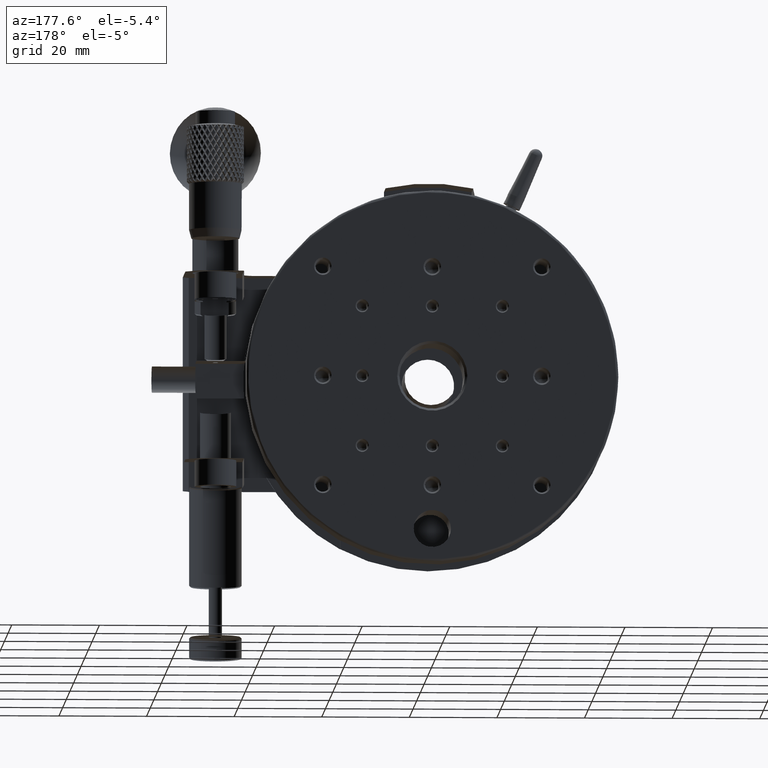
[diagram: clean part render]
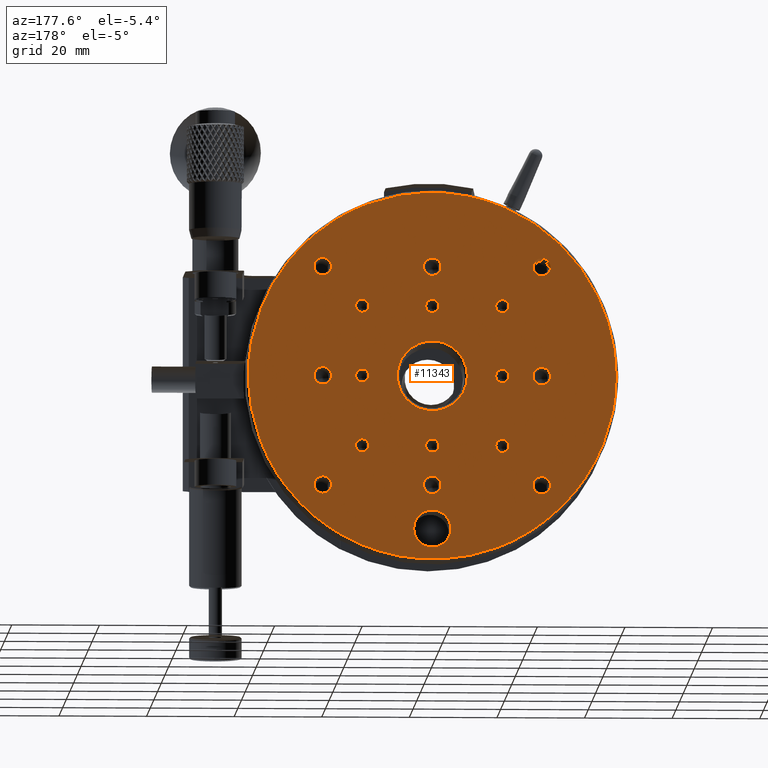
[diagram: same view with one face highlighted and labeled with its STEP entity id]
A machine part, auxiliary view. The second image highlights one B-rep face of the part: STEP entity #11343.
In plain terms, the highlighted planar face has unit normal (-0, 1, 0).
Its self-contained STEP definition (entity closure, byte-faithful):
#198 = CARTESIAN_POINT ( 'NONE',  ( -39.11347827466251204, 25.00000000000000000, 15.30155901577856170 ) ) ;
#287 = CARTESIAN_POINT ( 'NONE',  ( -15.30155901578072886, 25.00000000000000000, -39.11347827466170202 ) ) ;
#511 = EDGE_CURVE ( 'NONE', #18165, #18165, #47224, .T. ) ;
#551 = CARTESIAN_POINT ( 'NONE',  ( -41.29106306204288757, 25.00000000000000000, -7.684304287958648949 ) ) ;
#646 = VERTEX_POINT ( 'NONE', #1483 ) ;
#801 = CARTESIAN_POINT ( 'NONE',  ( 41.20289222050687528, 25.00000000000000000, 8.143916685803526789 ) ) ;
#848 = VERTEX_POINT ( 'NONE', #45862 ) ;
#1214 = CARTESIAN_POINT ( 'NONE',  ( 41.30269742753671380, 25.00000000000000000, -7.621523177789406134 ) ) ;
#1422 = EDGE_LOOP ( 'NONE', ( #77516 ) ) ;
#1483 = CARTESIAN_POINT ( 'NONE',  ( 8.000000000000000000, 25.00000000000000000, 0.000000000000000000 ) ) ;
#1635 = CARTESIAN_POINT ( 'NONE',  ( 36.27122486441964355, 25.00000000000000000, -21.17600811014306572 ) ) ;
#1930 = DIRECTION ( 'NONE',  ( -0.000000000000000000, -1.000000000000000000, 8.673617380434270884E-16 ) ) ;
#2047 = CARTESIAN_POINT ( 'NONE',  ( 41.30973928339271595, 25.00000000000000000, -7.583232023410917400 ) ) ;
#2086 = ORIENTED_EDGE ( 'NONE', *, *, #44594, .T. ) ;
#2451 = CARTESIAN_POINT ( 'NONE',  ( 39.23617413845508395, 25.00000000000000000, -14.98413685577910570 ) ) ;
#2476 = CARTESIAN_POINT ( 'NONE',  ( 7.602972036643405929, 25.00000000000000000, 41.30611561417287447 ) ) ;
#2508 = VERTEX_POINT ( 'NONE', #52199 ) ;
#2675 = CARTESIAN_POINT ( 'NONE',  ( -23.73539856332172349, 25.00000000000000000, 34.65068130934262314 ) ) ;
#2686 = EDGE_LOOP ( 'NONE', ( #26794 ) ) ;
#2827 = EDGE_LOOP ( 'NONE', ( #41124 ) ) ;
#2869 = CARTESIAN_POINT ( 'NONE',  ( 41.30611561417234867, 25.00000000000000000, -7.602972036644167986 ) ) ;
#2894 = CARTESIAN_POINT ( 'NONE',  ( -14.19367240629698834, 25.00000000000000000, 39.55244541050158347 ) ) ;
#3092 = CARTESIAN_POINT ( 'NONE',  ( -17.09324139039514989, 25.00000000000000000, 38.36620085499041721 ) ) ;
#3269 = CARTESIAN_POINT ( 'NONE',  ( 7.767976233487967619, 25.00000000000000000, -41.27539902335922761 ) ) ;
#3291 = CARTESIAN_POINT ( 'NONE',  ( 7.326546200762905414, 25.00000000000000000, 41.35611934525805822 ) ) ;
#3532 = CARTESIAN_POINT ( 'NONE',  ( -41.27933436855453664, 25.00000000000000000, -7.747063834297938101 ) ) ;
#3680 = CARTESIAN_POINT ( 'NONE',  ( 21.79501129073664600, 25.00000000000000000, -35.93039012160138412 ) ) ;
#3703 = CARTESIAN_POINT ( 'NONE',  ( 7.484522946373629360, 25.00000000000000000, 41.32775775761377446 ) ) ;
#3745 = EDGE_CURVE ( 'NONE', #63155, #63155, #47096, .T. ) ;
#3893 = FACE_BOUND ( 'NONE', #5076, .T. ) ;
#3938 = CARTESIAN_POINT ( 'NONE',  ( -34.54788417592423855, 25.00000000000000000, -23.88414836670949626 ) ) ;
#3993 = CARTESIAN_POINT ( 'NONE',  ( -41.46316325314546702, 25.00000000000000000, 6.694120035858610152 ) ) ;
#4087 = CARTESIAN_POINT ( 'NONE',  ( 11.60613730852658954, 25.00000000000000000, -40.36504300067502982 ) ) ;
#4105 = CARTESIAN_POINT ( 'NONE',  ( 7.168502517275618047, 25.00000000000000000, 41.38373902748690369 ) ) ;
#4211 = AXIS2_PLACEMENT_3D ( 'NONE', #69985, #6864, #57779 ) ;
#4358 = CARTESIAN_POINT ( 'NONE',  ( -38.78488636585100835, 25.00000000000000000, -16.11730553597122650 ) ) ;
#4420 = CARTESIAN_POINT ( 'NONE',  ( -41.30269742753726803, 25.00000000000000000, 7.621523177787629777 ) ) ;
#4513 = CARTESIAN_POINT ( 'NONE',  ( 7.705225626653683157, 25.00000000000000000, -41.28715865368685911 ) ) ;
#4533 = CARTESIAN_POINT ( 'NONE',  ( 31.69061511580206769, 25.00000000000000000, 27.60136488592886650 ) ) ;
#4745 = CARTESIAN_POINT ( 'NONE',  ( -16.11730553595846871, 25.00000000000000000, 38.78488636586089200 ) ) ;
#4784 = CARTESIAN_POINT ( 'NONE',  ( -34.13307714040729479, 25.00000000000000000, -24.47620094564953064 ) ) ;
#4936 = CARTESIAN_POINT ( 'NONE',  ( 19.32040415487264795, 25.00000000000000000, -37.29300374017007158 ) ) ;
#4958 = CARTESIAN_POINT ( 'NONE',  ( 15.14296308198047747, 25.00000000000000000, 39.17522869370348815 ) ) ;
#5076 = EDGE_LOOP ( 'NONE', ( #57488 ) ) ;
#5161 = FACE_BOUND ( 'NONE', #36898, .T. ) ;
#5214 = CARTESIAN_POINT ( 'NONE',  ( -41.28325424533046828, 25.00000000000000000, -7.726146965352546303 ) ) ;
#5269 = CARTESIAN_POINT ( 'NONE',  ( -39.09793230797741614, 25.00000000000000000, 15.34117699833175585 ) ) ;
#5359 = CARTESIAN_POINT ( 'NONE',  ( -15.45997780159865798, 25.00000000000000000, -39.05110864462207587 ) ) ;
#5381 = CARTESIAN_POINT ( 'NONE',  ( 34.54788417592875049, 25.00000000000000000, 23.88414836670802899 ) ) ;
#5469 = CARTESIAN_POINT ( 'NONE',  ( 41.69325844254844071, 25.00000000000000000, -5.109465241448223338 ) ) ;
#5702 = CARTESIAN_POINT ( 'NONE',  ( -36.96847075986477194, 25.00000000000000000, 19.94683827959823574 ) ) ;
#5736 = VERTEX_POINT ( 'NONE', #57077 ) ;
#5786 = CARTESIAN_POINT ( 'NONE',  ( -8.981649706765333363, 25.00000000000000000, -41.05102041485584152 ) ) ;
#5807 = CARTESIAN_POINT ( 'NONE',  ( 22.61049856905032840, 25.00000000000000000, 35.39455532252594594 ) ) ;
#5887 = CARTESIAN_POINT ( 'NONE',  ( 41.25959576889752611, 25.00000000000000000, 7.851607951256941220 ) ) ;
#6121 = CARTESIAN_POINT ( 'NONE',  ( -39.53272777693943851, 25.00000000000000000, 14.18766737172280834 ) ) ;
#6154 = VERTEX_POINT ( 'NONE', #51176 ) ;
#6209 = CARTESIAN_POINT ( 'NONE',  ( -7.168502517315919143, 25.00000000000000000, -41.38373902748099908 ) ) ;
#6226 = CARTESIAN_POINT ( 'NONE',  ( 15.45997780159868284, 25.00000000000000000, 39.05110864462206166 ) ) ;
#6351 = AXIS2_PLACEMENT_3D ( 'NONE', #41673, #38715, #25259 ) ;
#6614 = CARTESIAN_POINT ( 'NONE',  ( -22.38618809476287552, 25.00000000000000000, -35.53721301960658252 ) ) ;
#6718 = CARTESIAN_POINT ( 'NONE',  ( 41.29882547349612310, 25.00000000000000000, 7.642448201310083178 ) ) ;
#6864 = DIRECTION ( 'NONE',  ( -0.000000000000000000, -1.000000000000000000, -0.000000000000000000 ) ) ;
#7252 = DIRECTION ( 'NONE',  ( 1.000000000000000000, 0.000000000000000000, 0.000000000000000000 ) ) ;
#7545 = CARTESIAN_POINT ( 'NONE',  ( 41.29882547349612310, 25.00000000000000000, -7.642448201310090283 ) ) ;
#7596 = VERTEX_POINT ( 'NONE', #27829 ) ;
#7959 = CARTESIAN_POINT ( 'NONE',  ( 39.35657892154188886, 25.00000000000000000, -14.66605924828616736 ) ) ;
#8375 = CARTESIAN_POINT ( 'NONE',  ( 40.73980814985919352, 25.00000000000000000, -10.30271125931979270 ) ) ;
#8386 = AXIS2_PLACEMENT_3D ( 'NONE', #25049, #44362, #23385 ) ;
#8779 = CARTESIAN_POINT ( 'NONE',  ( 39.09793230798069175, 25.00000000000000000, -15.34117699832125226 ) ) ;
#8789 = DIRECTION ( 'NONE',  ( -0.000000000000000000, -1.000000000000000000, -0.000000000000000000 ) ) ;
#8805 = CARTESIAN_POINT ( 'NONE',  ( -7.684304287958352297, 25.00000000000000000, 41.29106306204270282 ) ) ;
#8824 = ORIENTED_EDGE ( 'NONE', *, *, #511, .T. ) ;
#9181 = CARTESIAN_POINT ( 'NONE',  ( 24.47620094566563154, 25.00000000000000000, -34.13307714039586216 ) ) ;
#9202 = CARTESIAN_POINT ( 'NONE',  ( -7.642448201310083178, 25.00000000000000000, 41.29882547349613020 ) ) ;
#9596 = CARTESIAN_POINT ( 'NONE',  ( 23.28528169504321710, 25.00000000000000000, -34.95432342606896015 ) ) ;
#9620 = CARTESIAN_POINT ( 'NONE',  ( -8.310786783209429984, 25.00000000000000000, 41.16992449064435533 ) ) ;
#9870 = CARTESIAN_POINT ( 'NONE',  ( -41.21937608543595388, 25.00000000000000000, -8.060481637112037134 ) ) ;
#9908 = DIRECTION ( 'NONE',  ( 1.000000000000000000, 0.000000000000000000, 0.000000000000000000 ) ) ;
#9910 = DIRECTION ( 'NONE',  ( -0.000000000000000000, -1.000000000000000000, -0.000000000000000000 ) ) ;
#10016 = CARTESIAN_POINT ( 'NONE',  ( 8.643668785690241663, 25.00000000000000000, -41.10101909434383316 ) ) ;
#10036 = CARTESIAN_POINT ( 'NONE',  ( 7.642448201310096501, 25.00000000000000000, 41.29882547349612310 ) ) ;
#10200 = DIRECTION ( 'NONE',  ( 1.000000000000000000, 0.000000000000000000, 0.000000000000000000 ) ) ;
#10233 = FACE_BOUND ( 'NONE', #56542, .T. ) ;
#10239 = CARTESIAN_POINT ( 'NONE',  ( -23.05704703913972509, 25.00000000000000000, 35.10527530553287079 ) ) ;
#10276 = CARTESIAN_POINT ( 'NONE',  ( -40.55235273640883520, 25.00000000000000000, -10.95467650856427433 ) ) ;
#10430 = CARTESIAN_POINT ( 'NONE',  ( 23.58591210122632020, 25.00000000000000000, -34.75257381734139983 ) ) ;
#10452 = CARTESIAN_POINT ( 'NONE',  ( 6.060816782794204549, 25.00000000000000000, 41.56178213760198048 ) ) ;
#10702 = CARTESIAN_POINT ( 'NONE',  ( -40.95726842855418681, 25.00000000000000000, -9.307716406126171904 ) ) ;
#10706 = EDGE_CURVE ( 'NONE', #39189, #39189, #80902, .T. ) ;
#10761 = CARTESIAN_POINT ( 'NONE',  ( -41.31336194897031078, 25.00000000000000000, 7.563497434122730567 ) ) ;
#10860 = CARTESIAN_POINT ( 'NONE',  ( 2.568573314180139899, 25.00000000000000000, -41.99996756669980869 ) ) ;
#10882 = CARTESIAN_POINT ( 'NONE',  ( 19.31993562624644767, 25.00000000000000000, 37.29324552430768591 ) ) ;
#11006 = ORIENTED_EDGE ( 'NONE', *, *, #36186, .T. ) ;
#11010 = CARTESIAN_POINT ( 'NONE',  ( -25.00000000000000000, 24.99999999997726263, 25.00000000000000000 ) ) ;
#11087 = FACE_BOUND ( 'NONE', #70418, .T. ) ;
#11094 = CARTESIAN_POINT ( 'NONE',  ( -17.41494358650372831, 25.00000000000000000, 38.21969211295147062 ) ) ;
#11136 = CARTESIAN_POINT ( 'NONE',  ( -22.98280964217598665, 25.00000000000000000, -35.15381147118335292 ) ) ;
#11197 = CARTESIAN_POINT ( 'NONE',  ( -41.38373332631495316, 25.00000000000000000, 7.168533327859787363 ) ) ;
#11289 = CARTESIAN_POINT ( 'NONE',  ( 15.62479318456619559, 25.00000000000000000, -38.98548346400652775 ) ) ;
#11312 = CARTESIAN_POINT ( 'NONE',  ( 38.96896862346072510, 25.00000000000000000, 15.66594062787898167 ) ) ;
#11343 = ADVANCED_FACE ( 'NONE', ( #56935, #49332, #23718, #18639, #55669, #44274, #3893, #11087, #29619, #10233, #24137, #75458, #43447, #37165, #62804, #5161, #32123, #33367, #58164 ), #71183, .T. ) ;
#11422 = CARTESIAN_POINT ( 'NONE',  ( -15.58361351129509309, 25.00000000000000000, 39.00193627861314383 ) ) ;
#11566 = CARTESIAN_POINT ( 'NONE',  ( -41.27539902335887234, 25.00000000000000000, -7.767976233491772575 ) ) ;
#11619 = CARTESIAN_POINT ( 'NONE',  ( -35.34675433826554070, 25.00000000000000000, 22.68514041735052089 ) ) ;
#11668 = ORIENTED_EDGE ( 'NONE', *, *, #13604, .T. ) ;
#11709 = CARTESIAN_POINT ( 'NONE',  ( -7.563492010183239245, 25.00000000000000000, -41.31336295261309033 ) ) ;
#11735 = CARTESIAN_POINT ( 'NONE',  ( 29.69848480983500849, 25.00000000000000000, 29.69848480983499428 ) ) ;
#12042 = CARTESIAN_POINT ( 'NONE',  ( -25.92244609407283562, 25.00000000000000000, 33.05444678108744938 ) ) ;
#12136 = CARTESIAN_POINT ( 'NONE',  ( -14.18766737173784698, 25.00000000000000000, -39.53272777693376128 ) ) ;
#12155 = CARTESIAN_POINT ( 'NONE',  ( 34.65068130936199253, 25.00000000000000000, 23.73539856329970377 ) ) ;
#12399 = EDGE_CURVE ( 'NONE', #24481, #24481, #79577, .T. ) ;
#12460 = CARTESIAN_POINT ( 'NONE',  ( -27.60136488598758930, 25.00000000000000000, 31.69061511575035084 ) ) ;
#12494 = DIRECTION ( 'NONE',  ( 1.000000000000000000, 0.000000000000000000, 0.000000000000000000 ) ) ;
#12552 = CARTESIAN_POINT ( 'NONE',  ( -16.77947771114030218, 25.00000000000000000, -38.52874942670139546 ) ) ;
#12573 = CARTESIAN_POINT ( 'NONE',  ( 35.15381147118335292, 25.00000000000000000, 22.98280964217597599 ) ) ;
#12960 = CARTESIAN_POINT ( 'NONE',  ( -19.94683827943689991, 25.00000000000000000, -36.96847075992815235 ) ) ;
#13463 = CARTESIAN_POINT ( 'NONE',  ( 39.00193627861411017, 25.00000000000000000, 15.58361351129241967 ) ) ;
#13604 = EDGE_CURVE ( 'NONE', #848, #848, #58108, .T. ) ;
#13869 = CARTESIAN_POINT ( 'NONE',  ( 41.76629948280717741, 25.00000000000000000, -4.473912719270093596 ) ) ;
#14095 = CARTESIAN_POINT ( 'NONE',  ( -23.58591210123591253, 25.00000000000000000, 34.75257381733396045 ) ) ;
#14287 = CARTESIAN_POINT ( 'NONE',  ( 36.62779720662322092, 25.00000000000000000, -20.56552910745304530 ) ) ;
#14713 = CARTESIAN_POINT ( 'NONE',  ( 41.05102041489784170, 25.00000000000000000, -8.981649706633859864 ) ) ;
#14739 = CARTESIAN_POINT ( 'NONE',  ( -15.45997780159866508, 25.00000000000000000, 39.05110864462206166 ) ) ;
#15127 = CARTESIAN_POINT ( 'NONE',  ( 29.69848480983499428, 25.00000000000000000, -29.69848480983499783 ) ) ;
#15150 = CARTESIAN_POINT ( 'NONE',  ( -7.705225626655154869, 25.00000000000000000, 41.28715865368639726 ) ) ;
#15352 = CARTESIAN_POINT ( 'NONE',  ( -23.28528169504821221, 25.00000000000000000, 34.95432342606508058 ) ) ;
#15536 = CARTESIAN_POINT ( 'NONE',  ( 39.17522869371122596, 25.00000000000000000, -15.14296308195559781 ) ) ;
#15562 = CARTESIAN_POINT ( 'NONE',  ( -7.893396991634362259, 25.00000000000000000, 41.25160133114702887 ) ) ;
#15754 = CARTESIAN_POINT ( 'NONE',  ( -15.87138777482948626, 25.00000000000000000, 38.88583618728452507 ) ) ;
#15827 = DIRECTION ( 'NONE',  ( 0.000000000000000000, 1.734723475988246761E-15, 1.000000000000000000 ) ) ;
#15936 = CARTESIAN_POINT ( 'NONE',  ( 15.58361351129330252, 25.00000000000000000, -39.00193627861409595 ) ) ;
#15959 = CARTESIAN_POINT ( 'NONE',  ( 5.109465241414339332, 25.00000000000000000, 41.69325844257154756 ) ) ;
#16153 = CARTESIAN_POINT ( 'NONE',  ( -15.70705584123953358, 25.00000000000000000, 38.95239175697481926 ) ) ;
#16162 = ORIENTED_EDGE ( 'NONE', *, *, #29920, .T. ) ;
#16340 = CARTESIAN_POINT ( 'NONE',  ( 7.662180123450617941, 25.00000000000000000, -41.29517377629206010 ) ) ;
#16366 = CARTESIAN_POINT ( 'NONE',  ( 7.563492010176147140, 25.00000000000000000, 41.31336295261412772 ) ) ;
#16488 = CIRCLE ( 'NONE', #8386, 1.999999999986810995 ) ;
#16604 = CARTESIAN_POINT ( 'NONE',  ( -38.50873993696431086, 25.00000000000000000, -16.76947647695547516 ) ) ;
#16753 = CARTESIAN_POINT ( 'NONE',  ( 7.642448201310076072, 25.00000000000000000, -41.29882547349612310 ) ) ;
#16778 = CARTESIAN_POINT ( 'NONE',  ( 13.54641029507806138, 25.00000000000000000, 39.75570406629525166 ) ) ;
#16845 = EDGE_CURVE ( 'NONE', #7596, #7596, #21904, .T. ) ;
#16977 = CARTESIAN_POINT ( 'NONE',  ( -21.79501129075596921, 25.00000000000000000, 35.93039012159121626 ) ) ;
#17022 = CARTESIAN_POINT ( 'NONE',  ( -39.03544187068815319, 25.00000000000000000, -15.49954984520153545 ) ) ;
#17060 = CARTESIAN_POINT ( 'NONE',  ( -16.00000000000000000, 24.99999999997726263, -16.00000000000000000 ) ) ;
#17072 = CARTESIAN_POINT ( 'NONE',  ( -41.31697110333240630, 25.00000000000000000, 7.543757470887181960 ) ) ;
#17166 = CARTESIAN_POINT ( 'NONE',  ( 9.638023831686389542, 25.00000000000000000, -40.87945322248956614 ) ) ;
#17190 = CARTESIAN_POINT ( 'NONE',  ( 34.85356169989226771, 25.00000000000000000, 23.43568898046252613 ) ) ;
#17211 = EDGE_LOOP ( 'NONE', ( #30893 ) ) ;
#17221 = VERTEX_POINT ( 'NONE', #60584 ) ;
#17449 = CARTESIAN_POINT ( 'NONE',  ( -41.20289222050639211, 25.00000000000000000, -8.143916685812635947 ) ) ;
#17505 = CARTESIAN_POINT ( 'NONE',  ( -41.51429056236970894, 25.00000000000000000, 6.377678368340864878 ) ) ;
#17604 = CARTESIAN_POINT ( 'NONE',  ( 15.66594062788043118, 25.00000000000000000, -38.96896862346071799 ) ) ;
#17626 = CARTESIAN_POINT ( 'NONE',  ( 35.00436505462187853, 25.00000000000000000, 23.20980180532438197 ) ) ;
#17839 = CIRCLE ( 'NONE', #43312, 1.499999999964529707 ) ;
#17872 = CARTESIAN_POINT ( 'NONE',  ( -39.05110864462207587, 25.00000000000000000, -15.45997780159865620 ) ) ;
#18023 = CARTESIAN_POINT ( 'NONE',  ( -7.247534657188143825, 25.00000000000000000, -41.37004332566217357 ) ) ;
#18041 = CARTESIAN_POINT ( 'NONE',  ( 15.30155901577732358, 25.00000000000000000, 39.11347827466289573 ) ) ;
#18165 = VERTEX_POINT ( 'NONE', #77053 ) ;
#18285 = CARTESIAN_POINT ( 'NONE',  ( -41.03112371917286794, 25.00000000000000000, -8.976264724121024940 ) ) ;
#18337 = CARTESIAN_POINT ( 'NONE',  ( -26.48208569137775115, 25.00000000000000000, 32.59983622597508202 ) ) ;
#18425 = CARTESIAN_POINT ( 'NONE',  ( -22.68514041732469266, 25.00000000000000000, -35.34675433827569435 ) ) ;
#18442 = CARTESIAN_POINT ( 'NONE',  ( 15.06358539849308187, 25.00000000000000000, 39.20582525827368414 ) ) ;
#18518 = CARTESIAN_POINT ( 'NONE',  ( 39.55244541050930707, 25.00000000000000000, 14.19367240628060323 ) ) ;
#18639 = FACE_BOUND ( 'NONE', #18725, .T. ) ;
#18725 = EDGE_LOOP ( 'NONE', ( #64382 ) ) ;
#18836 = CARTESIAN_POINT ( 'NONE',  ( -14.50659528948602883, 25.00000000000000000, -39.41529520665675079 ) ) ;
#18853 = CARTESIAN_POINT ( 'NONE',  ( 18.06613031948356252, 25.00000000000000000, 37.94279505321413382 ) ) ;
#18933 = CARTESIAN_POINT ( 'NONE',  ( 41.41113043111865721, 25.00000000000000000, -7.010438237529978522 ) ) ;
#19032 = AXIS2_PLACEMENT_3D ( 'NONE', #11010, #55598, #47596 ) ;
#19253 = CARTESIAN_POINT ( 'NONE',  ( -7.602972036646971077, 25.00000000000000000, -41.30611561417235578 ) ) ;
#19349 = CARTESIAN_POINT ( 'NONE',  ( 41.76624271561570367, 25.00000000000000000, 5.116762167316445620 ) ) ;
#19579 = CARTESIAN_POINT ( 'NONE',  ( -39.05110864462206166, 25.00000000000000000, 15.45997780159867752 ) ) ;
#19673 = CARTESIAN_POINT ( 'NONE',  ( -22.83416749440691618, 25.00000000000000000, -35.25065553259373985 ) ) ;
#19772 = CARTESIAN_POINT ( 'NONE',  ( 40.36504300067143447, 25.00000000000000000, 11.60613730854943526 ) ) ;
#20180 = CARTESIAN_POINT ( 'NONE',  ( 41.94159311443313953, 25.00000000000000000, -2.563300668942572358 ) ) ;
#20611 = CARTESIAN_POINT ( 'NONE',  ( 39.06743237018162063, 25.00000000000000000, -15.41874342942589315 ) ) ;
#21026 = CARTESIAN_POINT ( 'NONE',  ( 39.20582525828323384, 25.00000000000000000, -15.06358539846234734 ) ) ;
#21198 = EDGE_CURVE ( 'NONE', #47512, #47512, #36859, .T. ) ;
#21369 = DIRECTION ( 'NONE',  ( 1.000000000000000000, 0.000000000000000000, 0.000000000000000000 ) ) ;
#21437 = CARTESIAN_POINT ( 'NONE',  ( 33.56740575214222133, 25.00000000000000000, -25.40939512013817136 ) ) ;
#21465 = CARTESIAN_POINT ( 'NONE',  ( -8.143916685809278633, 25.00000000000000000, 41.20289222050417521 ) ) ;
#21650 = CARTESIAN_POINT ( 'NONE',  ( -23.88414836673372221, 25.00000000000000000, 34.54788417590614813 ) ) ;
#21715 = CARTESIAN_POINT ( 'NONE',  ( 0.000000000000000000, 25.00000000000000000, -35.00000000000000000 ) ) ;
#21835 = CARTESIAN_POINT ( 'NONE',  ( 38.52874942671704872, 25.00000000000000000, -16.77947771112724951 ) ) ;
#21859 = CARTESIAN_POINT ( 'NONE',  ( -7.976975072384227872, 25.00000000000000000, 41.23561245564837208 ) ) ;
#21904 = CIRCLE ( 'NONE', #70301, 1.499999999984083399 ) ;
#22121 = DIRECTION ( 'NONE',  ( 0.000000000000000000, 2.312964634690437149E-15, 1.000000000000000000 ) ) ;
#22242 = CARTESIAN_POINT ( 'NONE',  ( 23.88414836672007269, 25.00000000000000000, -34.54788417591674232 ) ) ;
#22262 = CARTESIAN_POINT ( 'NONE',  ( -2.568573313950788695, 25.00000000000000000, 41.99996756666620001 ) ) ;
#22647 = CARTESIAN_POINT ( 'NONE',  ( 10.29863868288913942, 25.00000000000000000, -40.72382281035271490 ) ) ;
#22671 = CARTESIAN_POINT ( 'NONE',  ( 7.405537148101985601, 25.00000000000000000, 41.34196708625958649 ) ) ;
#22677 = EDGE_LOOP ( 'NONE', ( #16162 ) ) ;
#22877 = CARTESIAN_POINT ( 'NONE',  ( -16.00000000000000000, 24.99999999997726263, 0.000000000000000000 ) ) ;
#22926 = CARTESIAN_POINT ( 'NONE',  ( -32.59983622601644981, 25.00000000000000000, -26.48208569132237145 ) ) ;
#22979 = CARTESIAN_POINT ( 'NONE',  ( -41.35611544945721363, 25.00000000000000000, 7.326567254662081474 ) ) ;
#23077 = CARTESIAN_POINT ( 'NONE',  ( 9.307716406085013716, 25.00000000000000000, -40.95726842855798822 ) ) ;
#23096 = CARTESIAN_POINT ( 'NONE',  ( 7.543750709675658861, 25.00000000000000000, 41.31697235442291571 ) ) ;
#23110 = AXIS2_PLACEMENT_3D ( 'NONE', #59173, #1930, #15827 ) ;
#23352 = CARTESIAN_POINT ( 'NONE',  ( -37.61777850457583128, 25.00000000000000000, -18.69350150156175161 ) ) ;
#23385 = DIRECTION ( 'NONE',  ( 0.000000000000000000, 1.734723475988246761E-15, 1.000000000000000000 ) ) ;
#23496 = CARTESIAN_POINT ( 'NONE',  ( 8.477370816492214800, 25.00000000000000000, -41.13596678192771350 ) ) ;
#23521 = CARTESIAN_POINT ( 'NONE',  ( 36.64345421126359525, 25.00000000000000000, 20.57420946162129027 ) ) ;
#23718 = FACE_BOUND ( 'NONE', #22677, .T. ) ;
#23769 = CARTESIAN_POINT ( 'NONE',  ( -38.71659406988800356, 25.00000000000000000, -16.28073503072141293 ) ) ;
#23927 = CARTESIAN_POINT ( 'NONE',  ( -5.743699602463244069, 25.00000000000000000, -41.60560757257292863 ) ) ;
#23946 = CARTESIAN_POINT ( 'NONE',  ( 38.50873993699101305, 25.00000000000000000, 16.76947647690777998 ) ) ;
#24137 = FACE_BOUND ( 'NONE', #17211, .T. ) ;
#24190 = CARTESIAN_POINT ( 'NONE',  ( -33.49458332911557079, 25.00000000000000000, -25.35101995793612772 ) ) ;
#24243 = CARTESIAN_POINT ( 'NONE',  ( -41.29882547349612310, 25.00000000000000000, 7.642448201310088507 ) ) ;
#24336 = CARTESIAN_POINT ( 'NONE',  ( 20.57420946163553666, 25.00000000000000000, -36.64345421126361657 ) ) ;
#24353 = CARTESIAN_POINT ( 'NONE',  ( 21.17600811030099450, 25.00000000000000000, 36.27122486434676318 ) ) ;
#24385 = AXIS2_PLACEMENT_3D ( 'NONE', #25097, #51170, #12494 ) ;
#24481 = VERTEX_POINT ( 'NONE', #75803 ) ;
#24601 = CARTESIAN_POINT ( 'NONE',  ( -38.88583618727815860, 25.00000000000000000, -15.87138777483769836 ) ) ;
#24665 = CARTESIAN_POINT ( 'NONE',  ( -29.69848480983499428, 25.00000000000000000, 29.69848480983500139 ) ) ;
#24749 = CARTESIAN_POINT ( 'NONE',  ( -20.56552910747100071, 25.00000000000000000, -36.62779720660170568 ) ) ;
#24769 = CARTESIAN_POINT ( 'NONE',  ( 22.68514041735526732, 25.00000000000000000, 35.34675433826389934 ) ) ;
#24846 = CARTESIAN_POINT ( 'NONE',  ( 41.46317389532209319, 25.00000000000000000, -6.694062522784316016 ) ) ;
#25049 = CARTESIAN_POINT ( 'NONE',  ( 25.00000000000000000, 24.99999999997726263, -25.00000000000000000 ) ) ;
#25067 = CARTESIAN_POINT ( 'NONE',  ( -35.44210788821435898, 25.00000000000000000, 22.53572841096712054 ) ) ;
#25097 = CARTESIAN_POINT ( 'NONE',  ( 0.000000000000000000, 25.00000000000000000, 0.000000000000000000 ) ) ;
#25159 = CARTESIAN_POINT ( 'NONE',  ( -15.38079498088603714, 25.00000000000000000, -39.08238634129192235 ) ) ;
#25176 = CARTESIAN_POINT ( 'NONE',  ( 38.71659406990580976, 25.00000000000000000, 16.28073503068961614 ) ) ;
#25257 = CARTESIAN_POINT ( 'NONE',  ( 41.60560757257292863, 25.00000000000000000, -5.743699602361973078 ) ) ;
#25259 = DIRECTION ( 'NONE',  ( 0.000000000000000000, 1.734723475988246761E-15, 1.000000000000000000 ) ) ;
#25481 = CARTESIAN_POINT ( 'NONE',  ( -39.64619739681630506, 25.00000000000000000, 13.86760570692786487 ) ) ;
#25575 = CARTESIAN_POINT ( 'NONE',  ( -14.66605924836012065, 25.00000000000000000, -39.35657892151824200 ) ) ;
#25910 = CARTESIAN_POINT ( 'NONE',  ( -39.08238634129232025, 25.00000000000000000, 15.38079498088495001 ) ) ;
#26006 = CARTESIAN_POINT ( 'NONE',  ( -6.852291572747297721, 25.00000000000000000, -41.43760872039902665 ) ) ;
#26111 = CARTESIAN_POINT ( 'NONE',  ( 40.72382281034940377, 25.00000000000000000, 10.29863868291008266 ) ) ;
#26333 = CARTESIAN_POINT ( 'NONE',  ( -39.14438444473263701, 25.00000000000000000, 15.22226990627951437 ) ) ;
#26647 = AXIS2_PLACEMENT_3D ( 'NONE', #29177, #73342, #10200 ) ;
#26794 = ORIENTED_EDGE ( 'NONE', *, *, #76985, .T. ) ;
#26932 = CARTESIAN_POINT ( 'NONE',  ( 39.12896232025298104, 25.00000000000000000, -15.26192331841048500 ) ) ;
#26988 = VERTEX_POINT ( 'NONE', #52604 ) ;
#27358 = CARTESIAN_POINT ( 'NONE',  ( 35.53721301961380163, 25.00000000000000000, -22.38618809475685012 ) ) ;
#27779 = CARTESIAN_POINT ( 'NONE',  ( 37.94279505331130053, 25.00000000000000000, -18.06613031927298607 ) ) ;
#27829 = CARTESIAN_POINT ( 'NONE',  ( 17.49999999998408384, 24.99999999997726263, 16.00000000000000000 ) ) ;
#28169 = CARTESIAN_POINT ( 'NONE',  ( 41.32775775761172810, 25.00000000000000000, -7.484522946376646502 ) ) ;
#28197 = CARTESIAN_POINT ( 'NONE',  ( 8.981649706737323768, 25.00000000000000000, 41.05102041486570386 ) ) ;
#28366 = CIRCLE ( 'NONE', #65978, 1.500000000001819433 ) ;
#28391 = CARTESIAN_POINT ( 'NONE',  ( -23.13432191561476969, 25.00000000000000000, 35.05440668316614250 ) ) ;
#28573 = CARTESIAN_POINT ( 'NONE',  ( 40.17787894264068882, 25.00000000000000000, -12.25709365939193418 ) ) ;
#28595 = CARTESIAN_POINT ( 'NONE',  ( -10.29863868293261042, 25.00000000000000000, 40.72382281033880957 ) ) ;
#28806 = CARTESIAN_POINT ( 'NONE',  ( -16.28073503070583783, 25.00000000000000000, 38.71659406990007568 ) ) ;
#28986 = CARTESIAN_POINT ( 'NONE',  ( 7.726146965349999007, 25.00000000000000000, -41.28325424533070986 ) ) ;
#29003 = CIRCLE ( 'NONE', #76021, 1.499999999984083399 ) ;
#29012 = CARTESIAN_POINT ( 'NONE',  ( -7.662180123448865565, 25.00000000000000000, 41.29517377629233010 ) ) ;
#29177 = CARTESIAN_POINT ( 'NONE',  ( -25.00000000000000000, 24.99999999997726263, -25.00000000000000000 ) ) ;
#29259 = CARTESIAN_POINT ( 'NONE',  ( -35.10527530553421371, 25.00000000000000000, -23.05704703913800557 ) ) ;
#29310 = CARTESIAN_POINT ( 'NONE',  ( -41.37003851134416976, 25.00000000000000000, 7.247560674980744189 ) ) ;
#29401 = CARTESIAN_POINT ( 'NONE',  ( -1.284286657090069950, 25.00000000000000000, -42.00001621665010276 ) ) ;
#29427 = CARTESIAN_POINT ( 'NONE',  ( 11.60563285952308910, 25.00000000000000000, 40.36518867833198954 ) ) ;
#29457 = CARTESIAN_POINT ( 'NONE',  ( 25.00000000000000000, 24.99999999997726619, 26.99999999998681233 ) ) ;
#29619 = FACE_BOUND ( 'NONE', #2686, .T. ) ;
#29626 = CARTESIAN_POINT ( 'NONE',  ( -20.57420946166452680, 25.00000000000000000, 36.64345421124836832 ) ) ;
#29667 = CARTESIAN_POINT ( 'NONE',  ( -37.29300374012260733, 25.00000000000000000, -19.32040415494319774 ) ) ;
#29726 = CARTESIAN_POINT ( 'NONE',  ( -41.33488848625250256, 25.00000000000000000, 7.445045973024656760 ) ) ;
#29815 = CARTESIAN_POINT ( 'NONE',  ( 7.893396991628623738, 25.00000000000000000, -41.25160133114886207 ) ) ;
#29834 = CARTESIAN_POINT ( 'NONE',  ( 14.98413685581549615, 25.00000000000000000, 39.23617413844378632 ) ) ;
#29920 = EDGE_CURVE ( 'NONE', #2508, #2508, #29003, .T. ) ;
#30042 = CARTESIAN_POINT ( 'NONE',  ( -22.98280964217597599, 25.00000000000000000, 35.15381147118336003 ) ) ;
#30083 = CARTESIAN_POINT ( 'NONE',  ( -38.96896862345590762, 25.00000000000000000, -15.66594062788759523 ) ) ;
#30231 = CARTESIAN_POINT ( 'NONE',  ( -3.837042035962627384, 25.00000000000000000, -41.82473069334917426 ) ) ;
#30254 = CARTESIAN_POINT ( 'NONE',  ( 32.59983622602679532, 25.00000000000000000, 26.48208569131902834 ) ) ;
#30458 = CARTESIAN_POINT ( 'NONE',  ( -15.95336036187248041, 25.00000000000000000, 38.85218624680998545 ) ) ;
#30497 = CARTESIAN_POINT ( 'NONE',  ( -38.21969211292731217, 25.00000000000000000, -17.41494358653489627 ) ) ;
#30554 = CARTESIAN_POINT ( 'NONE',  ( -41.30973852917595934, 25.00000000000000000, 7.583236099393302787 ) ) ;
#30650 = CARTESIAN_POINT ( 'NONE',  ( 15.49954984520281975, 25.00000000000000000, -39.03544187068802529 ) ) ;
#30672 = CARTESIAN_POINT ( 'NONE',  ( 22.83416749442257299, 25.00000000000000000, 35.25065553258770024 ) ) ;
#30893 = ORIENTED_EDGE ( 'NONE', *, *, #10706, .T. ) ;
#30923 = CARTESIAN_POINT ( 'NONE',  ( -35.93039012156972944, 25.00000000000000000, -21.79501129078368038 ) ) ;
#30979 = CARTESIAN_POINT ( 'NONE',  ( -37.29324552431800299, 25.00000000000000000, 19.31993562621678961 ) ) ;
#31073 = CARTESIAN_POINT ( 'NONE',  ( -10.30271125951700562, 25.00000000000000000, -40.73980814979619680 ) ) ;
#31096 = CARTESIAN_POINT ( 'NONE',  ( 25.40939512029743597, 25.00000000000000000, 33.56740575198295318 ) ) ;
#31178 = CARTESIAN_POINT ( 'NONE',  ( 41.56178213758516904, 25.00000000000000000, -6.060816782818847948 ) ) ;
#31397 = CARTESIAN_POINT ( 'NONE',  ( -25.35101995798689245, 25.00000000000000000, 33.49458332907765623 ) ) ;
#31493 = CARTESIAN_POINT ( 'NONE',  ( -22.08556774517737864, 25.00000000000000000, -35.72444225944760632 ) ) ;
#31514 = CARTESIAN_POINT ( 'NONE',  ( 15.22226990627767407, 25.00000000000000000, 39.14438444473320544 ) ) ;
#31590 = CARTESIAN_POINT ( 'NONE',  ( 41.82473069334916715, 25.00000000000000000, -3.837042035827586073 ) ) ;
#31715 = CARTESIAN_POINT ( 'NONE',  ( -15.66594062788338348, 25.00000000000000000, 38.96896862345916190 ) ) ;
#31906 = CARTESIAN_POINT ( 'NONE',  ( -21.48124761150112860, 25.00000000000000000, -36.09293869330220161 ) ) ;
#31922 = CARTESIAN_POINT ( 'NONE',  ( 22.08556774526093136, 25.00000000000000000, 35.72444225941537610 ) ) ;
#32007 = CARTESIAN_POINT ( 'NONE',  ( 40.95726842855557237, 25.00000000000000000, 9.307716406100244200 ) ) ;
#32123 = FACE_BOUND ( 'NONE', #64197, .T. ) ;
#32177 = CARTESIAN_POINT ( 'NONE',  ( -41.29517352283725273, 25.00000000000000000, -7.662181492992372611 ) ) ;
#32234 = CARTESIAN_POINT ( 'NONE',  ( -40.36518867832729995, 25.00000000000000000, 11.60563285953834800 ) ) ;
#32327 = CARTESIAN_POINT ( 'NONE',  ( -22.75965395586580442, 25.00000000000000000, -35.29870493543471355 ) ) ;
#32652 = CARTESIAN_POINT ( 'NONE',  ( -39.35657892152202919, 25.00000000000000000, 14.66605924835010377 ) ) ;
#33003 = CARTESIAN_POINT ( 'NONE',  ( -41.76627515783204103, 25.00000000000000000, -5.116586865976354481 ) ) ;
#33245 = CARTESIAN_POINT ( 'NONE',  ( 39.97471740529109496, 25.00000000000000000, -12.90401947125652171 ) ) ;
#33367 = FACE_BOUND ( 'NONE', #77951, .T. ) ;
#33396 = DIRECTION ( 'NONE',  ( 0.000000000000000000, 2.312964634690437149E-15, 1.000000000000000000 ) ) ;
#33661 = CARTESIAN_POINT ( 'NONE',  ( 36.96847075995162157, 25.00000000000000000, -19.94683827941731735 ) ) ;
#33685 = CARTESIAN_POINT ( 'NONE',  ( -15.49954984520184453, 25.00000000000000000, 39.03544187068833082 ) ) ;
#33951 = CARTESIAN_POINT ( 'NONE',  ( 0.000000000000000000, 24.99999999992041921, -16.00000000000000000 ) ) ;
#34079 = CARTESIAN_POINT ( 'NONE',  ( 35.63132447668817804, 25.00000000000000000, -22.23613453950488150 ) ) ;
#34474 = CARTESIAN_POINT ( 'NONE',  ( 27.60136488595637161, 25.00000000000000000, -31.69061511577455548 ) ) ;
#34498 = CARTESIAN_POINT ( 'NONE',  ( -8.643668785710996616, 25.00000000000000000, 41.10101909433720380 ) ) ;
#34872 = CARTESIAN_POINT ( 'NONE',  ( 24.18164797354016216, 25.00000000000000000, -34.34228990904681922 ) ) ;
#34896 = CARTESIAN_POINT ( 'NONE',  ( 5.743699602334249477, 25.00000000000000000, 41.60560757259183617 ) ) ;
#34928 = CARTESIAN_POINT ( 'NONE',  ( 2.000000000009549694, 24.99999999997726263, 25.00000000000000000 ) ) ;
#34946 = CIRCLE ( 'NONE', #65939, 1.499999999984083399 ) ;
#35091 = CARTESIAN_POINT ( 'NONE',  ( -15.78928626795183732, 25.00000000000000000, 38.91923802400614107 ) ) ;
#35145 = DIRECTION ( 'NONE',  ( -0.000000000000000000, -1.000000000000000000, 1.156482317389044136E-15 ) ) ;
#35270 = CARTESIAN_POINT ( 'NONE',  ( 15.54243383802040945, 25.00000000000000000, -39.01838909322166415 ) ) ;
#35295 = CARTESIAN_POINT ( 'NONE',  ( 6.852291572682801757, 25.00000000000000000, 41.43760872040848398 ) ) ;
#35326 = CARTESIAN_POINT ( 'NONE',  ( -4.250000000000000000, 25.00000000000000000, -35.00000000000000000 ) ) ;
#35534 = CARTESIAN_POINT ( 'NONE',  ( -35.15381147118335292, 25.00000000000000000, -22.98280964217598665 ) ) ;
#35578 = DIRECTION ( 'NONE',  ( 1.000000000000000000, 0.000000000000000000, 0.000000000000000000 ) ) ;
#35679 = CARTESIAN_POINT ( 'NONE',  ( 7.976975072376638387, 25.00000000000000000, -41.23561245565080213 ) ) ;
#35704 = CARTESIAN_POINT ( 'NONE',  ( 10.30271125947499122, 25.00000000000000000, 40.73980814981099741 ) ) ;
#35949 = CARTESIAN_POINT ( 'NONE',  ( -41.13596678192557476, 25.00000000000000000, -8.477370816515371388 ) ) ;
#36001 = CARTESIAN_POINT ( 'NONE',  ( -41.76627515783204103, 25.00000000000000000, 4.474044177725623683 ) ) ;
#36102 = CARTESIAN_POINT ( 'NONE',  ( 15.78928626794718504, 25.00000000000000000, -38.91923802400859245 ) ) ;
#36122 = CARTESIAN_POINT ( 'NONE',  ( 14.50659528946766308, 25.00000000000000000, 39.41529520666320963 ) ) ;
#36186 = EDGE_CURVE ( 'NONE', #26988, #26988, #43049, .T. ) ;
#36368 = CARTESIAN_POINT ( 'NONE',  ( -41.16992449064725434, 25.00000000000000000, -8.310786783213831797 ) ) ;
#36521 = CARTESIAN_POINT ( 'NONE',  ( 12.90905890857468208, 25.00000000000000000, -39.99042352919602195 ) ) ;
#36542 = CARTESIAN_POINT ( 'NONE',  ( 34.95432342607336551, 25.00000000000000000, 23.28528169503880463 ) ) ;
#36572 = ORIENTED_EDGE ( 'NONE', *, *, #59439, .T. ) ;
#36750 = CARTESIAN_POINT ( 'NONE',  ( -16.76947647693210186, 25.00000000000000000, 38.50873993698242970 ) ) ;
#36795 = CARTESIAN_POINT ( 'NONE',  ( -38.85218624680244659, 25.00000000000000000, -15.95336036188220774 ) ) ;
#36848 = CARTESIAN_POINT ( 'NONE',  ( -41.34196414065407055, 25.00000000000000000, 7.405553066903798332 ) ) ;
#36859 = CIRCLE ( 'NONE', #47570, 2.000000000009549694 ) ;
#36898 = EDGE_LOOP ( 'NONE', ( #46326 ) ) ;
#36943 = CARTESIAN_POINT ( 'NONE',  ( 16.44364884610190103, 25.00000000000000000, -38.64730935893420849 ) ) ;
#36961 = CARTESIAN_POINT ( 'NONE',  ( 34.75257381734983397, 25.00000000000000000, 23.58591210121786830 ) ) ;
#37165 = FACE_BOUND ( 'NONE', #55081, .T. ) ;
#37213 = CARTESIAN_POINT ( 'NONE',  ( -29.69848480983499783, 25.00000000000000000, -29.69848480983499428 ) ) ;
#37273 = CARTESIAN_POINT ( 'NONE',  ( -35.20338664990670452, 25.00000000000000000, 22.90697884598664302 ) ) ;
#37372 = CARTESIAN_POINT ( 'NONE',  ( -6.694062522843394092, 25.00000000000000000, -41.46317389532209319 ) ) ;
#37393 = CARTESIAN_POINT ( 'NONE',  ( 30.72349797707147445, 25.00000000000000000, 28.67349792543418729 ) ) ;
#37696 = CARTESIAN_POINT ( 'NONE',  ( -35.29870493542703969, 25.00000000000000000, 22.75965395588533369 ) ) ;
#37735 = CARTESIAN_POINT ( 'NONE',  ( 17.49999999998408384, 24.99999999997726263, -16.00000000000000000 ) ) ;
#37795 = CARTESIAN_POINT ( 'NONE',  ( -13.54641029510956329, 25.00000000000000000, -39.75570406628416009 ) ) ;
#37813 = CARTESIAN_POINT ( 'NONE',  ( 15.38079498088432828, 25.00000000000000000, 39.08238634129251921 ) ) ;
#37907 = CIRCLE ( 'NONE', #23110, 1.999999999986810995 ) ;
#38115 = CARTESIAN_POINT ( 'NONE',  ( -39.23617413844267787, 25.00000000000000000, 14.98413685581906840 ) ) ;
#38210 = CARTESIAN_POINT ( 'NONE',  ( -19.31993562605545378, 25.00000000000000000, -37.29324552438137630 ) ) ;
#38224 = CARTESIAN_POINT ( 'NONE',  ( 38.85218624681355948, 25.00000000000000000, 15.95336036186233564 ) ) ;
#38520 = CARTESIAN_POINT ( 'NONE',  ( -39.41529520666116326, 25.00000000000000000, 14.50659528947433685 ) ) ;
#38609 = CARTESIAN_POINT ( 'NONE',  ( -22.23613453951223207, 25.00000000000000000, -35.63132447667938152 ) ) ;
#38714 = CARTESIAN_POINT ( 'NONE',  ( 41.27933436855464322, 25.00000000000000000, 7.747063834295942364 ) ) ;
#38715 = DIRECTION ( 'NONE',  ( -0.000000000000000000, -1.000000000000000000, 8.673617380434270884E-16 ) ) ;
#38827 = DIRECTION ( 'NONE',  ( -0.000000000000000000, 1.000000000000000000, 0.000000000000000000 ) ) ;
#38934 = CARTESIAN_POINT ( 'NONE',  ( -39.75570406629174158, 25.00000000000000000, 13.54641029508950467 ) ) ;
#39131 = CARTESIAN_POINT ( 'NONE',  ( 40.55235273641093130, 25.00000000000000000, 10.95467650852538810 ) ) ;
#39189 = VERTEX_POINT ( 'NONE', #64813 ) ;
#39550 = CARTESIAN_POINT ( 'NONE',  ( 40.36518867838018565, 25.00000000000000000, -11.60563285936788702 ) ) ;
#39948 = CARTESIAN_POINT ( 'NONE',  ( 35.72444225945787366, 25.00000000000000000, -22.08556774516880594 ) ) ;
#40359 = CARTESIAN_POINT ( 'NONE',  ( 39.11347827466685345, 25.00000000000000000, -15.30155901576461730 ) ) ;
#40774 = CARTESIAN_POINT ( 'NONE',  ( 28.67349792545252640, 25.00000000000000000, -30.72349797705312824 ) ) ;
#40782 = CARTESIAN_POINT ( 'NONE',  ( 16.00000000000000000, 24.99999999997726263, -16.00000000000000000 ) ) ;
#40798 = CARTESIAN_POINT ( 'NONE',  ( -7.851607951259429008, 25.00000000000000000, 41.25959576889636082 ) ) ;
#41124 = ORIENTED_EDGE ( 'NONE', *, *, #73856, .T. ) ;
#41174 = CARTESIAN_POINT ( 'NONE',  ( 36.09293869331785487, 25.00000000000000000, -21.48124761148807238 ) ) ;
#41199 = CARTESIAN_POINT ( 'NONE',  ( -7.747063834297206242, 25.00000000000000000, 41.27933436855406057 ) ) ;
#41573 = CARTESIAN_POINT ( 'NONE',  ( 8.143916685798162192, 25.00000000000000000, -41.20289222050772793 ) ) ;
#41594 = CARTESIAN_POINT ( 'NONE',  ( 4.473912719233134716, 25.00000000000000000, 41.76629948283239457 ) ) ;
#41673 = CARTESIAN_POINT ( 'NONE',  ( 25.00000000000000000, 24.99999999997726263, 25.00000000000000000 ) ) ;
#41740 = EDGE_CURVE ( 'NONE', #70099, #70099, #64142, .T. ) ;
#41870 = CARTESIAN_POINT ( 'NONE',  ( 16.00000000000000000, 24.99999999997726263, 16.00000000000000000 ) ) ;
#41971 = CARTESIAN_POINT ( 'NONE',  ( 0.000000000000000000, 25.00000000000000000, -42.00000000000000000 ) ) ;
#41998 = CARTESIAN_POINT ( 'NONE',  ( 2.563300668905609037, 25.00000000000000000, 41.94159311445836380 ) ) ;
#42235 = CARTESIAN_POINT ( 'NONE',  ( -39.55244541050790730, 25.00000000000000000, -14.19367240630653093 ) ) ;
#42391 = CARTESIAN_POINT ( 'NONE',  ( 16.76947647691579135, 25.00000000000000000, -38.50873993699101305 ) ) ;
#42412 = CARTESIAN_POINT ( 'NONE',  ( 13.86760570691769345, 25.00000000000000000, 39.64619739681941724 ) ) ;
#42440 = CARTESIAN_POINT ( 'NONE',  ( -14.49999999999818101, 24.99999999997726263, 0.000000000000000000 ) ) ;
#42652 = CARTESIAN_POINT ( 'NONE',  ( -31.69061511579172219, 25.00000000000000000, -27.60136488593220250 ) ) ;
#42805 = CARTESIAN_POINT ( 'NONE',  ( 8.060481637099815799, 25.00000000000000000, -41.21937608543709075 ) ) ;
#42824 = CARTESIAN_POINT ( 'NONE',  ( 19.94683827962789024, 25.00000000000000000, 36.96847075985446196 ) ) ;
#42856 = VERTEX_POINT ( 'NONE', #37735 ) ;
#43049 = B_SPLINE_CURVE_WITH_KNOTS ( 'NONE', 3,
 ( #68801, #61247, #48160, #81903, #36001, #68366, #73878, #61666, #17505, #3993, #67540, #49005, #11197, #29310, #22979, #36848, #29726, #55363, #74708, #17072, #10761, #30554, #56186, #4420, #24243, #75562, #57448, #32234, #57855, #75981, #38934, #25481, #6121, #38520, #32652, #44807, #38115, #76813, #43965, #26333, #63331, #198, #5269, #25910, #69640, #19579, #76393, #45206, #30979, #5702, #70880, #77644, #50710, #64576, #58265, #51965, #43552, #25067, #69232, #11619, #37696, #44378, #37273, #56619, #70063, #82333, #24665, #50284, #12460, #18337, #12042, #31397, #57035, #82747, #52369, #21650, #2675, #14095, #47273, #59101, #15352, #72144, #28391, #10239, #30042, #16977, #29626, #80536, #61988, #68703, #11094, #3092, #36750, #62401, #28806, #4745, #30458, #15754, #35091, #16153, #31715, #72877, #11422, #78269, #33685, #14739, #2894, #80755, #47481, #55474, #28595, #73990, #54210, #66454, #34498, #61370, #9620, #21465, #73188, #21859, #15562, #40798, #72777, #60555, #41199, #66858, #15150, #8805, #29012, #9202, #54629, #22262, #47065, #73593, #41998, #80330, #41594, #15959, #34896, #10452, #79915, #67255, #35295, #47877, #4105, #60955, #3291, #22671, #60135, #3703, #48268, #23096, #16366, #48706, #2476, #67661, #10036, #28197, #35704, #29427, #55058, #74413, #16778, #42412, #68074, #36122, #53806, #61784, #29834, #18442, #4958, #31514, #76087, #18041, #56305, #37813, #68492, #6226, #55891, #18853, #10882, #42824, #49975, #24353, #44498, #63860, #31922, #49131, #57148, #43664, #5807, #24769, #69338, #30672, #75675, #63443, #31096, #62198, #11735, #37393, #4533, #30254, #82449, #62619, #44077, #75253, #63018, #5381, #12155, #36961, #17190, #69751, #36542, #17626, #70166, #56737, #12573, #81603, #23521, #82014, #50397, #43250, #82847, #74829, #23946, #76501, #25176, #50819, #38224, #81179, #49556, #68917, #11312, #44581, #13463, #58455, #57233, #63942, #18518, #58047, #19772, #39131, #26111, #83319, #32007, #45398, #50485, #71488, #63520, #801, #76169, #51325, #45806, #5887, #51735, #76579, #38714, #77413, #64762, #52149, #57637, #6718, #19349, #44995, #64346, #77828, #20180, #31590, #13869, #5469, #25257, #31178, #56819, #24846, #50903, #18933, #70250, #72340, #78244, #65173, #66430, #28169, #52550, #59292, #60531, #2047, #2869, #1214, #7545, #14713, #8375, #39550, #28573, #33245, #79487, #46644, #73569, #53780, #7959, #58869, #2451, #21026, #15536, #65592, #26932, #40359, #8779, #66010, #20611, #46233, #21835, #27779, #71916, #33661, #14287, #1635, #41174, #60117, #39948, #34079, #27358, #52968, #78664, #47039, #59712, #72752, #53379, #79076, #21437, #47458, #15127, #40774, #34474, #73164, #54188, #66839, #79892, #9181, #34872, #22242, #47855, #10430, #81583, #48246, #9596, #61764, #73967, #80735, #81156, #3680, #24336, #4936, #54607, #74389, #80305, #68053, #42391, #36943, #81990, #49956, #67230, #68897, #36102, #62592, #17604, #11289, #15936, #35270, #30650, #75230, #48683, #36521, #4087, #60933, #22647, #17166, #23077, #62179, #10016, #23496, #49106, #41573, #42805, #35679, #29815, #67636, #74809, #3269, #55453, #28986, #4513, #68468, #16340, #16753, #61348, #10860, #41971, #29401, #56285, #30231, #55871, #55032, #23927, #43233, #49535, #37372, #26006, #63422, #6209, #18023, #82829, #70565, #57130, #56715, #70150, #51225, #11709, #69732, #19253, #69317, #43645, #5786, #31073, #83226, #44894, #57946, #37795, #44058, #12136, #18836, #25575, #76905, #82426, #64243, #44476, #50800, #57539, #287, #63841, #25159, #76482, #5359, #12552, #76068, #38210, #12960, #24749, #62994, #31906, #50376, #31493, #38609, #6614, #77314, #51643, #18425, #32327, #19673, #75653, #11136, #55301, #75507, #37213, #61610, #42652, #22926, #62442, #24190, #55720, #4784, #56564, #3938, #80577, #82277, #75924, #48526, #74238, #81006, #49804, #29259, #35534, #30923, #48947, #29667, #23352, #81434, #30497, #56130, #16604, #62845, #23769, #4358, #36795, #24601, #68744, #62027, #30083, #67902, #50221, #74653, #17022, #17872, #42235, #61193, #49380, #10276, #68317, #75081, #10702, #18285, #67492, #35949, #36368, #17449, #9870, #81849, #43077, #43492, #69170, #11566, #3532, #5214, #54873, #551, #32177, #64513, #33003, #63696, #56983 ),
 .UNSPECIFIED., .T., .F.,
 ( 4, 3, 3, 3, 3, 3, 3, 3, 3, 3, 3, 3, 3, 3, 3, 3, 3, 3, 3, 3, 3, 3, 3, 3, 3, 3, 3, 3, 3, 3, 3, 3, 3, 3, 3, 3, 3, 3, 3, 3, 3, 3, 3, 3, 3, 3, 3, 3, 3, 3, 3, 3, 3, 3, 3, 3, 3, 3, 3, 3, 3, 3, 3, 3, 3, 3, 3, 3, 3, 3, 3, 3, 3, 3, 3, 3, 3, 3, 3, 3, 3, 3, 3, 3, 3, 3, 3, 3, 3, 3, 3, 3, 3, 3, 3, 3, 3, 3, 3, 3, 3, 3, 3, 3, 3, 3, 3, 3, 3, 3, 3, 3, 3, 3, 3, 3, 3, 3, 3, 3, 3, 3, 3, 3, 3, 3, 3, 3, 3, 3, 3, 3, 3, 3, 3, 3, 3, 3, 3, 3, 3, 3, 3, 3, 3, 3, 3, 3, 3, 3, 3, 3, 3, 3, 3, 3, 3, 3, 3, 3, 3, 3, 3, 3, 3, 3, 3, 3, 3, 3, 3, 3, 3, 3, 3, 3, 4 ),
 ( 0.000000000000000000, 0.005681818181818181976, 0.01136363636363636395, 0.01704545454545454419, 0.02272727272727272790, 0.02840909090909090814, 0.03409090909090908839, 0.03977272727272727210, 0.04545454545454545581, 0.05113636363636363952, 0.05681818181818181629, 0.06250000000000000000, 0.06818181818181817677, 0.07386363636363636742, 0.07954545454545454419, 0.08522727272727272096, 0.09090909090909091161, 0.09659090909090908839, 0.1022727272727272790, 0.1079545454545454558, 0.1136363636363636326, 0.1193181818181818232, 0.1250000000000000000, 0.1306818181818181768, 0.1363636363636363535, 0.1420454545454545581, 0.1477272727272727348, 0.1534090909090909116, 0.1590909090909090884, 0.1647727272727272652, 0.1704545454545454419, 0.1761363636363636465, 0.1818181818181818232, 0.1875000000000000000, 0.1931818181818181768, 0.1988636363636363535, 0.2045454545454545581, 0.2102272727272727348, 0.2159090909090909116, 0.2215909090909090884, 0.2272727272727272652, 0.2329545454545454419, 0.2386363636363636465, 0.2443181818181818232, 0.2500000000000000000, 0.2556818181818181768, 0.2613636363636363535, 0.2670454545454545303, 0.2727272727272727071, 0.2784090909090908839, 0.2840909090909091161, 0.2897727272727272929, 0.2954545454545454697, 0.3011363636363636465, 0.3068181818181818232, 0.3125000000000000000, 0.3181818181818181768, 0.3238636363636363535, 0.3295454545454545303, 0.3352272727272727071, 0.3409090909090908839, 0.3465909090909091161, 0.3522727272727272929, 0.3579545454545454697, 0.3636363636363636465, 0.3693181818181818232, 0.3750000000000000000, 0.3806818181818181768, 0.3863636363636363535, 0.3920454545454545303, 0.3977272727272727071, 0.4034090909090908839, 0.4090909090909091161, 0.4147727272727272929, 0.4204545454545454697, 0.4261363636363636465, 0.4318181818181818232, 0.4375000000000000000, 0.4431818181818181768, 0.4488636363636363535, 0.4545454545454545303, 0.4602272727272727071, 0.4659090909090908839, 0.4715909090909091161, 0.4772727272727272929, 0.4829545454545454697, 0.4886363636363636465, 0.4943181818181818232, 0.5000000000000000000, 0.5056818181818182323, 0.5113636363636363535, 0.5170454545454545858, 0.5227272727272727071, 0.5284090909090909394, 0.5340909090909090606, 0.5397727272727272929, 0.5454545454545454142, 0.5511363636363636465, 0.5568181818181817677, 0.5625000000000000000, 0.5681818181818182323, 0.5738636363636363535, 0.5795454545454545858, 0.5852272727272727071, 0.5909090909090909394, 0.5965909090909090606, 0.6022727272727272929, 0.6079545454545454142, 0.6136363636363636465, 0.6193181818181817677, 0.6250000000000000000, 0.6306818181818182323, 0.6363636363636363535, 0.6420454545454545858, 0.6477272727272727071, 0.6534090909090909394, 0.6590909090909090606, 0.6647727272727272929, 0.6704545454545454142, 0.6761363636363636465, 0.6818181818181817677, 0.6875000000000000000, 0.6931818181818182323, 0.6988636363636363535, 0.7045454545454545858, 0.7102272727272727071, 0.7159090909090909394, 0.7215909090909090606, 0.7272727272727272929, 0.7329545454545454142, 0.7386363636363636465, 0.7443181818181817677, 0.7500000000000000000, 0.7556818181818182323, 0.7613636363636363535, 0.7670454545454545858, 0.7727272727272727071, 0.7784090909090909394, 0.7840909090909090606, 0.7897727272727272929, 0.7954545454545454142, 0.8011363636363636465, 0.8068181818181817677, 0.8125000000000000000, 0.8181818181818182323, 0.8238636363636363535, 0.8295454545454545858, 0.8352272727272727071, 0.8409090909090909394, 0.8465909090909090606, 0.8522727272727272929, 0.8579545454545454142, 0.8636363636363636465, 0.8693181818181817677, 0.8750000000000000000, 0.8806818181818182323, 0.8863636363636363535, 0.8920454545454545858, 0.8977272727272727071, 0.9034090909090909394, 0.9090909090909090606, 0.9147727272727272929, 0.9204545454545454142, 0.9261363636363636465, 0.9318181818181817677, 0.9375000000000000000, 0.9431818181818182323, 0.9488636363636363535, 0.9545454545454545858, 0.9602272727272727071, 0.9659090909090909394, 0.9715909090909090606, 0.9772727272727272929, 0.9829545454545454142, 0.9886363636363636465, 0.9943181818181817677, 1.000000000000000000 ),
 .UNSPECIFIED. ) ;
#43077 = CARTESIAN_POINT ( 'NONE',  ( -41.25160133114817285, 25.00000000000000000, -7.893396991636098647 ) ) ;
#43233 = CARTESIAN_POINT ( 'NONE',  ( -6.060816782908864830, 25.00000000000000000, -41.56178213758516904 ) ) ;
#43250 = CARTESIAN_POINT ( 'NONE',  ( 37.92667462888755381, 25.00000000000000000, 18.05834797868125818 ) ) ;
#43312 = AXIS2_PLACEMENT_3D ( 'NONE', #33951, #35145, #22121 ) ;
#43322 = ORIENTED_EDGE ( 'NONE', *, *, #12399, .T. ) ;
#43447 = FACE_BOUND ( 'NONE', #60161, .T. ) ;
#43492 = CARTESIAN_POINT ( 'NONE',  ( -41.25959576889732006, 25.00000000000000000, -7.851607951260886509 ) ) ;
#43552 = CARTESIAN_POINT ( 'NONE',  ( -35.53721301958711365, 25.00000000000000000, 22.38618809481244654 ) ) ;
#43645 = CARTESIAN_POINT ( 'NONE',  ( -7.642448201310083178, 25.00000000000000000, -41.29882547349612310 ) ) ;
#43664 = CARTESIAN_POINT ( 'NONE',  ( 22.53572841097407320, 25.00000000000000000, 35.44210788821194313 ) ) ;
#43965 = CARTESIAN_POINT ( 'NONE',  ( -39.17522869370274208, 25.00000000000000000, 15.14296308198291463 ) ) ;
#44058 = CARTESIAN_POINT ( 'NONE',  ( -13.86760570694569239, 25.00000000000000000, -39.64619739680956201 ) ) ;
#44077 = CARTESIAN_POINT ( 'NONE',  ( 33.92024586998446978, 25.00000000000000000, 24.76780728307588930 ) ) ;
#44274 = FACE_BOUND ( 'NONE', #76526, .T. ) ;
#44362 = DIRECTION ( 'NONE',  ( -0.000000000000000000, -1.000000000000000000, 8.673617380434278772E-16 ) ) ;
#44378 = CARTESIAN_POINT ( 'NONE',  ( -35.25065553258853868, 25.00000000000000000, 22.83416749442014648 ) ) ;
#44476 = CARTESIAN_POINT ( 'NONE',  ( -15.14296308198718144, 25.00000000000000000, -39.17522869370113625 ) ) ;
#44498 = CARTESIAN_POINT ( 'NONE',  ( 21.48124761162845431, 25.00000000000000000, 36.09293869325306758 ) ) ;
#44581 = CARTESIAN_POINT ( 'NONE',  ( 38.98548346400654196, 25.00000000000000000, 15.62479318456502497 ) ) ;
#44594 = EDGE_CURVE ( 'NONE', #17221, #17221, #50739, .T. ) ;
#44807 = CARTESIAN_POINT ( 'NONE',  ( -39.29687189878253406, 25.00000000000000000, 14.82523977046501251 ) ) ;
#44894 = CARTESIAN_POINT ( 'NONE',  ( -12.25709365958915420, 25.00000000000000000, -40.17787894257768500 ) ) ;
#44995 = CARTESIAN_POINT ( 'NONE',  ( 41.99996756669981579, 25.00000000000000000, 2.568573314000074603 ) ) ;
#45206 = CARTESIAN_POINT ( 'NONE',  ( -37.94279505322445090, 25.00000000000000000, 18.06613031945390446 ) ) ;
#45398 = CARTESIAN_POINT ( 'NONE',  ( 41.03112371917404033, 25.00000000000000000, 8.976264724099152659 ) ) ;
#45424 = EDGE_LOOP ( 'NONE', ( #36572 ) ) ;
#45657 = VERTEX_POINT ( 'NONE', #46083 ) ;
#45776 = AXIS2_PLACEMENT_3D ( 'NONE', #66572, #60674, #33396 ) ;
#45806 = CARTESIAN_POINT ( 'NONE',  ( 41.25160133114842154, 25.00000000000000000, 7.893396991631393966 ) ) ;
#45862 = CARTESIAN_POINT ( 'NONE',  ( -23.00000000002455636, 24.99999999997726263, 0.000000000000000000 ) ) ;
#46083 = CARTESIAN_POINT ( 'NONE',  ( 25.00000000000000000, 24.99999999997726619, 1.999999999986810995 ) ) ;
#46164 = EDGE_CURVE ( 'NONE', #68105, #68105, #53503, .T. ) ;
#46233 = CARTESIAN_POINT ( 'NONE',  ( 39.05110864462208298, 25.00000000000000000, -15.45997780159865975 ) ) ;
#46326 = ORIENTED_EDGE ( 'NONE', *, *, #66574, .T. ) ;
#46644 = CARTESIAN_POINT ( 'NONE',  ( 39.64619739685156929, 25.00000000000000000, -13.86760570681421534 ) ) ;
#47039 = CARTESIAN_POINT ( 'NONE',  ( 35.34675433827946023, 25.00000000000000000, -22.68514041732154851 ) ) ;
#47065 = CARTESIAN_POINT ( 'NONE',  ( 6.938893903907228378E-15, 25.00000000000000000, 42.00000000000000000 ) ) ;
#47096 = CIRCLE ( 'NONE', #45776, 1.499999999964529707 ) ;
#47224 = CIRCLE ( 'NONE', #19032, 1.999999999975444975 ) ;
#47273 = CARTESIAN_POINT ( 'NONE',  ( -23.43568898047628934, 25.00000000000000000, 34.85356169988016006 ) ) ;
#47458 = CARTESIAN_POINT ( 'NONE',  ( 31.74845857859994069, 25.00000000000000000, -27.64845847539873702 ) ) ;
#47481 = CARTESIAN_POINT ( 'NONE',  ( -11.60613730857400228, 25.00000000000000000, 40.36504300065985973 ) ) ;
#47512 = VERTEX_POINT ( 'NONE', #34928 ) ;
#47570 = AXIS2_PLACEMENT_3D ( 'NONE', #79417, #54530, #21369 ) ;
#47596 = DIRECTION ( 'NONE',  ( 1.000000000000000000, 0.000000000000000000, 0.000000000000000000 ) ) ;
#47855 = CARTESIAN_POINT ( 'NONE',  ( 23.73539856331002795, 25.00000000000000000, -34.65068130935169677 ) ) ;
#47877 = CARTESIAN_POINT ( 'NONE',  ( 7.010438237518626714, 25.00000000000000000, 41.41113043112640213 ) ) ;
#48160 = CARTESIAN_POINT ( 'NONE',  ( -41.94156878945801026, 25.00000000000000000, 2.563432127398102001 ) ) ;
#48246 = CARTESIAN_POINT ( 'NONE',  ( 23.36057742009030136, 25.00000000000000000, -34.90405564115805248 ) ) ;
#48268 = CARTESIAN_POINT ( 'NONE',  ( 7.524008121908315694, 25.00000000000000000, 41.32056748881986863 ) ) ;
#48526 = CARTESIAN_POINT ( 'NONE',  ( -34.90405564116144888, 25.00000000000000000, -23.36057742008552651 ) ) ;
#48527 = ORIENTED_EDGE ( 'NONE', *, *, #21198, .T. ) ;
#48683 = CARTESIAN_POINT ( 'NONE',  ( 14.19367240626537097, 25.00000000000000000, -39.55244541051170870 ) ) ;
#48706 = CARTESIAN_POINT ( 'NONE',  ( 7.583232023409776090, 25.00000000000000000, 41.30973928339350465 ) ) ;
#48822 = CARTESIAN_POINT ( 'NONE',  ( -16.00000000000000000, 24.99999999997726263, 16.00000000000000000 ) ) ;
#48905 = DIRECTION ( 'NONE',  ( -0.000000000000000000, -1.000000000000000000, -0.000000000000000000 ) ) ;
#48947 = CARTESIAN_POINT ( 'NONE',  ( -36.64345421121615232, 25.00000000000000000, -20.57420946170608644 ) ) ;
#49005 = CARTESIAN_POINT ( 'NONE',  ( -41.41112295625651285, 25.00000000000000000, 7.010478633617873712 ) ) ;
#49106 = CARTESIAN_POINT ( 'NONE',  ( 8.310786783194856753, 25.00000000000000000, -41.16992449064900939 ) ) ;
#49131 = CARTESIAN_POINT ( 'NONE',  ( 22.23613453958384767, 25.00000000000000000, 35.63132447665174851 ) ) ;
#49332 = FACE_BOUND ( 'NONE', #45424, .T. ) ;
#49380 = CARTESIAN_POINT ( 'NONE',  ( -40.36504300066933126, 25.00000000000000000, -11.60613730858832149 ) ) ;
#49535 = CARTESIAN_POINT ( 'NONE',  ( -6.377604423035588610, 25.00000000000000000, -41.51430424516822626 ) ) ;
#49556 = CARTESIAN_POINT ( 'NONE',  ( 38.91923802400859955, 25.00000000000000000, 15.78928626794490242 ) ) ;
#49649 = DIRECTION ( 'NONE',  ( -0.000000000000000000, -1.000000000000000000, -0.000000000000000000 ) ) ;
#49686 = AXIS2_PLACEMENT_3D ( 'NONE', #21715, #73042, #80176 ) ;
#49804 = CARTESIAN_POINT ( 'NONE',  ( -35.05440668316953179, 25.00000000000000000, -23.13432191561023998 ) ) ;
#49956 = CARTESIAN_POINT ( 'NONE',  ( 16.11730553594955850, 25.00000000000000000, -38.78488636586558869 ) ) ;
#49975 = CARTESIAN_POINT ( 'NONE',  ( 20.56552910764607134, 25.00000000000000000, 36.62779720653415438 ) ) ;
#49992 = AXIS2_PLACEMENT_3D ( 'NONE', #48822, #50087, #56002 ) ;
#50043 = AXIS2_PLACEMENT_3D ( 'NONE', #54504, #9910, #35578 ) ;
#50087 = DIRECTION ( 'NONE',  ( -0.000000000000000000, -1.000000000000000000, -0.000000000000000000 ) ) ;
#50221 = CARTESIAN_POINT ( 'NONE',  ( -39.00193627861117562, 25.00000000000000000, -15.58361351129763861 ) ) ;
#50284 = CARTESIAN_POINT ( 'NONE',  ( -28.67349792547333465, 25.00000000000000000, 30.72349797703699537 ) ) ;
#50376 = CARTESIAN_POINT ( 'NONE',  ( -21.78443415650767179, 25.00000000000000000, -35.91067782498404881 ) ) ;
#50397 = CARTESIAN_POINT ( 'NONE',  ( 37.61777850462328132, 25.00000000000000000, 18.69350150147695899 ) ) ;
#50404 = ORIENTED_EDGE ( 'NONE', *, *, #41740, .T. ) ;
#50485 = CARTESIAN_POINT ( 'NONE',  ( 41.10101909434224865, 25.00000000000000000, 8.643668785700246104 ) ) ;
#50710 = CARTESIAN_POINT ( 'NONE',  ( -36.09293869325994564, 25.00000000000000000, 21.48124761160868346 ) ) ;
#50739 = CIRCLE ( 'NONE', #26647, 1.999999999975444975 ) ;
#50800 = CARTESIAN_POINT ( 'NONE',  ( -15.22226990628273668, 25.00000000000000000, -39.14438444473142908 ) ) ;
#50819 = CARTESIAN_POINT ( 'NONE',  ( 38.78488636586558158, 25.00000000000000000, 16.11730553594517090 ) ) ;
#50903 = CARTESIAN_POINT ( 'NONE',  ( 41.43760872039902665, 25.00000000000000000, -6.852291572696659117 ) ) ;
#51170 = DIRECTION ( 'NONE',  ( -0.000000000000000000, -1.000000000000000000, -0.000000000000000000 ) ) ;
#51176 = CARTESIAN_POINT ( 'NONE',  ( 0.000000000000000000, 24.99999999992042277, -14.50000000003547029 ) ) ;
#51225 = CARTESIAN_POINT ( 'NONE',  ( -7.543750709684490019, 25.00000000000000000, -41.31697235442160832 ) ) ;
#51325 = CARTESIAN_POINT ( 'NONE',  ( 41.23561245565021949, 25.00000000000000000, 7.976975072380300347 ) ) ;
#51643 = CARTESIAN_POINT ( 'NONE',  ( -22.61049856901252397, 25.00000000000000000, -35.39455532254053338 ) ) ;
#51735 = CARTESIAN_POINT ( 'NONE',  ( 41.26752833296772138, 25.00000000000000000, 7.809801031876270727 ) ) ;
#51965 = CARTESIAN_POINT ( 'NONE',  ( -35.63132447665562097, 25.00000000000000000, 22.23613453957272412 ) ) ;
#52149 = CARTESIAN_POINT ( 'NONE',  ( 41.29106306204293020, 25.00000000000000000, 7.684304287957846036 ) ) ;
#52199 = CARTESIAN_POINT ( 'NONE',  ( 17.49999999998408384, 24.99999999997726263, 0.000000000000000000 ) ) ;
#52263 = CARTESIAN_POINT ( 'NONE',  ( -42.00000000000000000, 25.00000000000000000, 0.000000000000000000 ) ) ;
#52369 = CARTESIAN_POINT ( 'NONE',  ( -24.18164797355771256, 25.00000000000000000, 34.34228990903320522 ) ) ;
#52408 = CARTESIAN_POINT ( 'NONE',  ( 25.00000000000000000, 24.99999999997726619, -23.00000000001319123 ) ) ;
#52550 = CARTESIAN_POINT ( 'NONE',  ( 41.32056748881832675, 25.00000000000000000, -7.524008121910586766 ) ) ;
#52604 = CARTESIAN_POINT ( 'NONE',  ( -42.00000000000000000, 25.00000000000000000, 0.000000000000000000 ) ) ;
#52968 = CARTESIAN_POINT ( 'NONE',  ( 35.44210788823471603, 25.00000000000000000, -22.53572841092471180 ) ) ;
#53379 = CARTESIAN_POINT ( 'NONE',  ( 35.20338664990340050, 25.00000000000000000, -22.90697884598966283 ) ) ;
#53503 = CIRCLE ( 'NONE', #66958, 1.500000000001819433 ) ;
#53780 = CARTESIAN_POINT ( 'NONE',  ( 39.41529520668433406, 25.00000000000000000, -14.50659528939975118 ) ) ;
#53806 = CARTESIAN_POINT ( 'NONE',  ( 14.66605924834438213, 25.00000000000000000, 39.35657892152377713 ) ) ;
#54188 = CARTESIAN_POINT ( 'NONE',  ( 25.92244609404161082, 25.00000000000000000, -33.05444678111165047 ) ) ;
#54210 = CARTESIAN_POINT ( 'NONE',  ( -9.307716406116631092, 25.00000000000000000, 40.95726842854787009 ) ) ;
#54504 = CARTESIAN_POINT ( 'NONE',  ( -25.00000000000000000, 24.99999999997726263, 0.000000000000000000 ) ) ;
#54530 = DIRECTION ( 'NONE',  ( -0.000000000000000000, -1.000000000000000000, -0.000000000000000000 ) ) ;
#54607 = CARTESIAN_POINT ( 'NONE',  ( 18.69350150149120537, 25.00000000000000000, -37.61777850462329553 ) ) ;
#54614 = DIRECTION ( 'NONE',  ( 1.000000000000000000, 0.000000000000000000, 0.000000000000000000 ) ) ;
#54629 = CARTESIAN_POINT ( 'NONE',  ( -5.116762167545847007, 25.00000000000000000, 41.76624271558208079 ) ) ;
#54873 = CARTESIAN_POINT ( 'NONE',  ( -41.28715865368668148, 25.00000000000000000, -7.705225626655598070 ) ) ;
#55032 = CARTESIAN_POINT ( 'NONE',  ( -5.109465241572002547, 25.00000000000000000, -41.69325844254844071 ) ) ;
#55047 = CIRCLE ( 'NONE', #49686, 4.250000000000000000 ) ;
#55058 = CARTESIAN_POINT ( 'NONE',  ( 12.25709365954713981, 25.00000000000000000, 40.17787894259249271 ) ) ;
#55081 = EDGE_LOOP ( 'NONE', ( #50404 ) ) ;
#55301 = CARTESIAN_POINT ( 'NONE',  ( -25.40939512012315404, 25.00000000000000000, -33.56740575216657163 ) ) ;
#55363 = CARTESIAN_POINT ( 'NONE',  ( -41.32775577012188961, 25.00000000000000000, 7.484533687285609638 ) ) ;
#55453 = CARTESIAN_POINT ( 'NONE',  ( 7.747063834294755758, 25.00000000000000000, -41.27933436855483507 ) ) ;
#55474 = CARTESIAN_POINT ( 'NONE',  ( -10.95467650854995156, 25.00000000000000000, 40.55235273639935656 ) ) ;
#55598 = DIRECTION ( 'NONE',  ( -0.000000000000000000, -1.000000000000000000, -0.000000000000000000 ) ) ;
#55669 = FACE_BOUND ( 'NONE', #1422, .T. ) ;
#55720 = CARTESIAN_POINT ( 'NONE',  ( -33.92024586997671776, 25.00000000000000000, -24.76780728307839752 ) ) ;
#55762 = DIRECTION ( 'NONE',  ( -0.000000000000000000, -1.000000000000000000, -0.000000000000000000 ) ) ;
#55871 = CARTESIAN_POINT ( 'NONE',  ( -4.473912719405135796, 25.00000000000000000, -41.76629948280719162 ) ) ;
#55891 = CARTESIAN_POINT ( 'NONE',  ( 16.77947771126763854, 25.00000000000000000, 38.52874942665226143 ) ) ;
#56002 = DIRECTION ( 'NONE',  ( 1.000000000000000000, 0.000000000000000000, 0.000000000000000000 ) ) ;
#56130 = CARTESIAN_POINT ( 'NONE',  ( -38.36620085496893040, 25.00000000000000000, -17.09324139042285040 ) ) ;
#56186 = CARTESIAN_POINT ( 'NONE',  ( -41.30611510938160791, 25.00000000000000000, 7.602974764663875007 ) ) ;
#56285 = CARTESIAN_POINT ( 'NONE',  ( -2.563300669077610117, 25.00000000000000000, -41.94159311443314664 ) ) ;
#56305 = CARTESIAN_POINT ( 'NONE',  ( 15.34117699833082504, 25.00000000000000000, 39.09793230797770747 ) ) ;
#56542 = EDGE_LOOP ( 'NONE', ( #48527 ) ) ;
#56564 = CARTESIAN_POINT ( 'NONE',  ( -34.34228990905646839, 25.00000000000000000, -24.18164797352656592 ) ) ;
#56619 = CARTESIAN_POINT ( 'NONE',  ( -35.15381147118335292, 25.00000000000000000, 22.98280964217598310 ) ) ;
#56715 = CARTESIAN_POINT ( 'NONE',  ( -7.484522946387668796, 25.00000000000000000, -41.32775775761171388 ) ) ;
#56737 = CARTESIAN_POINT ( 'NONE',  ( 35.10527530553223130, 25.00000000000000000, 23.05704703914152631 ) ) ;
#56819 = CARTESIAN_POINT ( 'NONE',  ( 41.51430424516822626, 25.00000000000000000, -6.377604422959629815 ) ) ;
#56935 = FACE_OUTER_BOUND ( 'NONE', #65446, .T. ) ;
#56983 = CARTESIAN_POINT ( 'NONE',  ( -42.00000000000000000, 25.00000000000000000, 0.000000000000000000 ) ) ;
#57035 = CARTESIAN_POINT ( 'NONE',  ( -24.76780728311992874, 25.00000000000000000, 33.92024586994570257 ) ) ;
#57077 = CARTESIAN_POINT ( 'NONE',  ( -14.49999999999818101, 24.99999999997726263, -16.00000000000000000 ) ) ;
#57130 = CARTESIAN_POINT ( 'NONE',  ( -7.445032621788968186, 25.00000000000000000, -41.33489095675779623 ) ) ;
#57148 = CARTESIAN_POINT ( 'NONE',  ( 22.38618809482156635, 25.00000000000000000, 35.53721301958394463 ) ) ;
#57233 = CARTESIAN_POINT ( 'NONE',  ( 39.03544187068811055, 25.00000000000000000, 15.49954984520234369 ) ) ;
#57448 = CARTESIAN_POINT ( 'NONE',  ( -40.73980814980630782, 25.00000000000000000, 10.30271125949025013 ) ) ;
#57488 = ORIENTED_EDGE ( 'NONE', *, *, #64127, .T. ) ;
#57539 = CARTESIAN_POINT ( 'NONE',  ( -15.26192331843051520, 25.00000000000000000, -39.12896232024657905 ) ) ;
#57637 = CARTESIAN_POINT ( 'NONE',  ( 41.29517377629206010, 25.00000000000000000, 7.662180123450657909 ) ) ;
#57779 = DIRECTION ( 'NONE',  ( 1.000000000000000000, 0.000000000000000000, 0.000000000000000000 ) ) ;
#57855 = CARTESIAN_POINT ( 'NONE',  ( -40.17787894258780312, 25.00000000000000000, 12.25709365956239871 ) ) ;
#57946 = CARTESIAN_POINT ( 'NONE',  ( -12.90401947143730510, 25.00000000000000000, -39.97471740523334915 ) ) ;
#58047 = CARTESIAN_POINT ( 'NONE',  ( 39.99042352919242660, 25.00000000000000000, 12.90905890859752958 ) ) ;
#58108 = CIRCLE ( 'NONE', #50043, 1.999999999975444975 ) ;
#58164 = FACE_BOUND ( 'NONE', #2827, .T. ) ;
#58265 = CARTESIAN_POINT ( 'NONE',  ( -35.72444225941988094, 25.00000000000000000, 22.08556774524795685 ) ) ;
#58455 = CARTESIAN_POINT ( 'NONE',  ( 39.01838909322167837, 25.00000000000000000, 15.54243383801981437 ) ) ;
#58869 = CARTESIAN_POINT ( 'NONE',  ( 39.29687189879879128, 25.00000000000000000, -14.82523977041262064 ) ) ;
#59101 = CARTESIAN_POINT ( 'NONE',  ( -23.36057742009647953, 25.00000000000000000, 34.90405564115325632 ) ) ;
#59173 = CARTESIAN_POINT ( 'NONE',  ( 25.00000000000000000, 24.99999999997726263, -9.860761315888193085E-26 ) ) ;
#59292 = CARTESIAN_POINT ( 'NONE',  ( 41.31697235442162253, 25.00000000000000000, -7.543750709677556898 ) ) ;
#59439 = EDGE_CURVE ( 'NONE', #42856, #42856, #34946, .T. ) ;
#59641 = ORIENTED_EDGE ( 'NONE', *, *, #46164, .T. ) ;
#59712 = CARTESIAN_POINT ( 'NONE',  ( 35.29870493543756993, 25.00000000000000000, -22.75965395586342410 ) ) ;
#60117 = CARTESIAN_POINT ( 'NONE',  ( 35.91067782499725070, 25.00000000000000000, -21.78443415649665482 ) ) ;
#60135 = CARTESIAN_POINT ( 'NONE',  ( 7.445032621771525250, 25.00000000000000000, 41.33489095676035419 ) ) ;
#60161 = EDGE_LOOP ( 'NONE', ( #8824 ) ) ;
#60531 = CARTESIAN_POINT ( 'NONE',  ( 41.31336295261308322, 25.00000000000000000, -7.563492010177667701 ) ) ;
#60555 = CARTESIAN_POINT ( 'NONE',  ( -7.767976233490895943, 25.00000000000000000, 41.27539902335830391 ) ) ;
#60584 = CARTESIAN_POINT ( 'NONE',  ( -23.00000000002455636, 24.99999999997726263, -25.00000000000000000 ) ) ;
#60674 = DIRECTION ( 'NONE',  ( -0.000000000000000000, -1.000000000000000000, 1.156482317389044136E-15 ) ) ;
#60933 = CARTESIAN_POINT ( 'NONE',  ( 10.95467650850254238, 25.00000000000000000, -40.55235273641454086 ) ) ;
#60955 = CARTESIAN_POINT ( 'NONE',  ( 7.247534657154114157, 25.00000000000000000, 41.37004332566715448 ) ) ;
#61193 = CARTESIAN_POINT ( 'NONE',  ( -39.99042352919032339, 25.00000000000000000, -12.90905890863641936 ) ) ;
#61247 = CARTESIAN_POINT ( 'NONE',  ( -42.00000000000000000, 25.00000000000000000, 1.284374295970396318 ) ) ;
#61348 = CARTESIAN_POINT ( 'NONE',  ( 5.116762167320650256, 25.00000000000000000, -41.76624271561570367 ) ) ;
#61370 = CARTESIAN_POINT ( 'NONE',  ( -8.477370816510006790, 25.00000000000000000, 41.13596678192202916 ) ) ;
#61454 = CARTESIAN_POINT ( 'NONE',  ( 16.00000000000000000, 24.99999999997726263, 0.000000000000000000 ) ) ;
#61610 = CARTESIAN_POINT ( 'NONE',  ( -30.72349797706457153, 25.00000000000000000, -28.67349792543641485 ) ) ;
#61666 = CARTESIAN_POINT ( 'NONE',  ( -41.56176592093508049, 25.00000000000000000, 6.060904421789201635 ) ) ;
#61764 = CARTESIAN_POINT ( 'NONE',  ( 23.20980180532771797, 25.00000000000000000, -35.00436505461854608 ) ) ;
#61784 = CARTESIAN_POINT ( 'NONE',  ( 14.82523977046032826, 25.00000000000000000, 39.29687189878397646 ) ) ;
#61988 = CARTESIAN_POINT ( 'NONE',  ( -18.69350150152019552, 25.00000000000000000, 37.61777850460805439 ) ) ;
#62027 = CARTESIAN_POINT ( 'NONE',  ( -38.95239175697093259, 25.00000000000000000, -15.70705584124455712 ) ) ;
#62179 = CARTESIAN_POINT ( 'NONE',  ( 8.976264724086293612, 25.00000000000000000, -41.03112371917607248 ) ) ;
#62198 = CARTESIAN_POINT ( 'NONE',  ( 27.64845847536207657, 25.00000000000000000, 31.74845857863660470 ) ) ;
#62401 = CARTESIAN_POINT ( 'NONE',  ( -16.44364884611459487, 25.00000000000000000, 38.64730935892752939 ) ) ;
#62442 = CARTESIAN_POINT ( 'NONE',  ( -33.05444678112881718, 25.00000000000000000, -25.92244609401745592 ) ) ;
#62592 = CARTESIAN_POINT ( 'NONE',  ( 15.70705584123601639, 25.00000000000000000, -38.95239175697668088 ) ) ;
#62619 = CARTESIAN_POINT ( 'NONE',  ( 33.49458332912504233, 25.00000000000000000, 25.35101995793306529 ) ) ;
#62804 = FACE_BOUND ( 'NONE', #81368, .T. ) ;
#62845 = CARTESIAN_POINT ( 'NONE',  ( -38.64730935891343933, 25.00000000000000000, -16.44364884613276701 ) ) ;
#62994 = CARTESIAN_POINT ( 'NONE',  ( -21.17600811015775264, 25.00000000000000000, -36.27122486440203630 ) ) ;
#63018 = CARTESIAN_POINT ( 'NONE',  ( 34.34228990906227352, 25.00000000000000000, 24.18164797352468298 ) ) ;
#63155 = VERTEX_POINT ( 'NONE', #70302 ) ;
#63331 = CARTESIAN_POINT ( 'NONE',  ( -39.12896232024758092, 25.00000000000000000, 15.26192331842781513 ) ) ;
#63422 = CARTESIAN_POINT ( 'NONE',  ( -7.010438237571470665, 25.00000000000000000, -41.41113043111865721 ) ) ;
#63443 = CARTESIAN_POINT ( 'NONE',  ( 22.98280964217597955, 25.00000000000000000, 35.15381147118335292 ) ) ;
#63520 = CARTESIAN_POINT ( 'NONE',  ( 41.16992449064790094, 25.00000000000000000, 8.310786783201885797 ) ) ;
#63696 = CARTESIAN_POINT ( 'NONE',  ( -42.00000000000000000, 25.00000000000000000, -2.569104132206328384 ) ) ;
#63841 = CARTESIAN_POINT ( 'NONE',  ( -15.34117699833338300, 25.00000000000000000, -39.09793230797681218 ) ) ;
#63860 = CARTESIAN_POINT ( 'NONE',  ( 21.78443415661509874, 25.00000000000000000, 35.91067782494260996 ) ) ;
#63942 = CARTESIAN_POINT ( 'NONE',  ( 39.05110864462208298, 25.00000000000000000, 15.45997780159865442 ) ) ;
#64127 = EDGE_CURVE ( 'NONE', #5736, #5736, #28366, .T. ) ;
#64142 = CIRCLE ( 'NONE', #6351, 1.999999999986810995 ) ;
#64197 = EDGE_LOOP ( 'NONE', ( #11668 ) ) ;
#64243 = CARTESIAN_POINT ( 'NONE',  ( -15.06358539850138278, 25.00000000000000000, -39.20582525827076381 ) ) ;
#64346 = CARTESIAN_POINT ( 'NONE',  ( 42.00000000000000000, 25.00000000000000000, -5.143516556418883322E-15 ) ) ;
#64382 = ORIENTED_EDGE ( 'NONE', *, *, #16845, .T. ) ;
#64513 = CARTESIAN_POINT ( 'NONE',  ( -41.29882547349612310, 25.00000000000000000, -7.642448201310077849 ) ) ;
#64576 = CARTESIAN_POINT ( 'NONE',  ( -35.91067782494840799, 25.00000000000000000, 21.78443415659841875 ) ) ;
#64762 = CARTESIAN_POINT ( 'NONE',  ( 41.28715865368673832, 25.00000000000000000, 7.705225626654396365 ) ) ;
#64813 = CARTESIAN_POINT ( 'NONE',  ( 2.000000000009549694, 24.99999999997726263, -25.00000000000000000 ) ) ;
#65173 = CARTESIAN_POINT ( 'NONE',  ( 41.34196708625653116, 25.00000000000000000, -7.405537148106449585 ) ) ;
#65446 = EDGE_LOOP ( 'NONE', ( #11006 ) ) ;
#65592 = CARTESIAN_POINT ( 'NONE',  ( 39.14438444473906031, 25.00000000000000000, -15.22226990625885534 ) ) ;
#65939 = AXIS2_PLACEMENT_3D ( 'NONE', #40782, #8789, #54614 ) ;
#65978 = AXIS2_PLACEMENT_3D ( 'NONE', #17060, #55762, #75123 ) ;
#66010 = CARTESIAN_POINT ( 'NONE',  ( 39.08238634129453004, 25.00000000000000000, -15.38079498087788544 ) ) ;
#66430 = CARTESIAN_POINT ( 'NONE',  ( 41.33489095675778913, 25.00000000000000000, -7.445032621775267145 ) ) ;
#66454 = CARTESIAN_POINT ( 'NONE',  ( -8.976264724112974491, 25.00000000000000000, 41.03112371916753887 ) ) ;
#66572 = CARTESIAN_POINT ( 'NONE',  ( 0.000000000000000000, 24.99999999992041921, 16.00000000000000000 ) ) ;
#66574 = EDGE_CURVE ( 'NONE', #73622, #73622, #55047, .T. ) ;
#66839 = CARTESIAN_POINT ( 'NONE',  ( 25.35101995795827534, 25.00000000000000000, -33.49458332909983937 ) ) ;
#66858 = CARTESIAN_POINT ( 'NONE',  ( -7.726146965351956553, 25.00000000000000000, 41.28325424533008459 ) ) ;
#66958 = AXIS2_PLACEMENT_3D ( 'NONE', #22877, #48905, #74604 ) ;
#67230 = CARTESIAN_POINT ( 'NONE',  ( 15.95336036186568229, 25.00000000000000000, -38.85218624681356658 ) ) ;
#67255 = CARTESIAN_POINT ( 'NONE',  ( 6.694062522768148504, 25.00000000000000000, 41.46317389533312792 ) ) ;
#67492 = CARTESIAN_POINT ( 'NONE',  ( -41.10101909434134626, 25.00000000000000000, -8.643668785717254721 ) ) ;
#67534 = DIRECTION ( 'NONE',  ( -0.000000000000000000, -1.000000000000000000, -0.000000000000000000 ) ) ;
#67540 = CARTESIAN_POINT ( 'NONE',  ( -41.43759959853334607, 25.00000000000000000, 6.852340869617482788 ) ) ;
#67636 = CARTESIAN_POINT ( 'NONE',  ( 7.851607951254616857, 25.00000000000000000, -41.25959576889790270 ) ) ;
#67661 = CARTESIAN_POINT ( 'NONE',  ( 7.621523177787796755, 25.00000000000000000, 41.30269742753722539 ) ) ;
#67902 = CARTESIAN_POINT ( 'NONE',  ( -38.98548346400264819, 25.00000000000000000, -15.62479318457195632 ) ) ;
#68053 = CARTESIAN_POINT ( 'NONE',  ( 17.09324139037582313, 25.00000000000000000, -38.36620085500058508 ) ) ;
#68074 = CARTESIAN_POINT ( 'NONE',  ( 14.18766737171422498, 25.00000000000000000, 39.53272777694207463 ) ) ;
#68105 = VERTEX_POINT ( 'NONE', #42440 ) ;
#68317 = CARTESIAN_POINT ( 'NONE',  ( -40.72382281034748530, 25.00000000000000000, -10.29863868294573059 ) ) ;
#68366 = CARTESIAN_POINT ( 'NONE',  ( -41.69323614465455563, 25.00000000000000000, 5.109585745032458881 ) ) ;
#68468 = CARTESIAN_POINT ( 'NONE',  ( 7.684304287957367308, 25.00000000000000000, -41.29106306204300836 ) ) ;
#68492 = CARTESIAN_POINT ( 'NONE',  ( 15.41874342942152865, 25.00000000000000000, 39.06743237018361725 ) ) ;
#68703 = CARTESIAN_POINT ( 'NONE',  ( -18.05834797872089226, 25.00000000000000000, 37.92667462887359875 ) ) ;
#68744 = CARTESIAN_POINT ( 'NONE',  ( -38.91923802400099675, 25.00000000000000000, -15.78928626795848444 ) ) ;
#68801 = CARTESIAN_POINT ( 'NONE',  ( -42.00000000000000000, 25.00000000000000000, 0.000000000000000000 ) ) ;
#68897 = CARTESIAN_POINT ( 'NONE',  ( 15.87138777482374685, 25.00000000000000000, -38.88583618728755198 ) ) ;
#68917 = CARTESIAN_POINT ( 'NONE',  ( 38.95239175697668799, 25.00000000000000000, 15.70705584123428800 ) ) ;
#69170 = CARTESIAN_POINT ( 'NONE',  ( -41.26752833296754375, 25.00000000000000000, -7.809801031879443300 ) ) ;
#69232 = CARTESIAN_POINT ( 'NONE',  ( -35.39455532252797809, 25.00000000000000000, 22.61049856904445576 ) ) ;
#69317 = CARTESIAN_POINT ( 'NONE',  ( -7.621523177787344672, 25.00000000000000000, -41.30269742753738171 ) ) ;
#69338 = CARTESIAN_POINT ( 'NONE',  ( 22.75965395588892193, 25.00000000000000000, 35.29870493542579624 ) ) ;
#69558 = ORIENTED_EDGE ( 'NONE', *, *, #82078, .T. ) ;
#69640 = CARTESIAN_POINT ( 'NONE',  ( -39.06743237018341119, 25.00000000000000000, 15.41874342942214149 ) ) ;
#69732 = CARTESIAN_POINT ( 'NONE',  ( -7.583232023415105161, 25.00000000000000000, -41.30973928339272305 ) ) ;
#69751 = CARTESIAN_POINT ( 'NONE',  ( 34.90405564116348813, 25.00000000000000000, 23.36057742008485505 ) ) ;
#69985 = CARTESIAN_POINT ( 'NONE',  ( 0.000000000000000000, 24.99999999997726263, -25.00000000000000000 ) ) ;
#70063 = CARTESIAN_POINT ( 'NONE',  ( -33.56740575203627941, 25.00000000000000000, 25.40939512023475899 ) ) ;
#70099 = VERTEX_POINT ( 'NONE', #29457 ) ;
#70150 = CARTESIAN_POINT ( 'NONE',  ( -7.524008121918883241, 25.00000000000000000, -41.32056748881831254 ) ) ;
#70166 = CARTESIAN_POINT ( 'NONE',  ( 35.05440668317039155, 25.00000000000000000, 23.13432191560995932 ) ) ;
#70250 = CARTESIAN_POINT ( 'NONE',  ( 41.38373902748099908, 25.00000000000000000, -7.168502517284273345 ) ) ;
#70301 = AXIS2_PLACEMENT_3D ( 'NONE', #41870, #67534, #9908 ) ;
#70302 = CARTESIAN_POINT ( 'NONE',  ( 0.000000000000000000, 24.99999999992042277, 17.49999999996452971 ) ) ;
#70418 = EDGE_LOOP ( 'NONE', ( #69558 ) ) ;
#70565 = CARTESIAN_POINT ( 'NONE',  ( -7.405537148122788516, 25.00000000000000000, -41.34196708625653827 ) ) ;
#70880 = CARTESIAN_POINT ( 'NONE',  ( -36.62779720654361171, 25.00000000000000000, 20.56552910761888597 ) ) ;
#71183 = PLANE ( 'NONE',  #71509 ) ;
#71334 = VERTEX_POINT ( 'NONE', #52408 ) ;
#71488 = CARTESIAN_POINT ( 'NONE',  ( 41.13596678192635636, 25.00000000000000000, 8.477370816500792827 ) ) ;
#71509 = AXIS2_PLACEMENT_3D ( 'NONE', #52263, #38827, #7252 ) ;
#71916 = CARTESIAN_POINT ( 'NONE',  ( 37.29324552440484553, 25.00000000000000000, -19.31993562603587122 ) ) ;
#72144 = CARTESIAN_POINT ( 'NONE',  ( -23.20980180533149095, 25.00000000000000000, 35.00436505461561154 ) ) ;
#72340 = CARTESIAN_POINT ( 'NONE',  ( 41.37004332566217357, 25.00000000000000000, -7.247534657161421201 ) ) ;
#72752 = CARTESIAN_POINT ( 'NONE',  ( 35.25065553259567253, 25.00000000000000000, -22.83416749440529969 ) ) ;
#72777 = CARTESIAN_POINT ( 'NONE',  ( -7.809801031878277122, 25.00000000000000000, 41.26752833296679057 ) ) ;
#72877 = CARTESIAN_POINT ( 'NONE',  ( -15.62479318456857058, 25.00000000000000000, 38.98548346400527009 ) ) ;
#73042 = DIRECTION ( 'NONE',  ( 0.000000000000000000, -1.000000000000000000, 0.000000000000000000 ) ) ;
#73164 = CARTESIAN_POINT ( 'NONE',  ( 26.48208569134652990, 25.00000000000000000, -32.59983622599928310 ) ) ;
#73188 = CARTESIAN_POINT ( 'NONE',  ( -8.060481637109203845, 25.00000000000000000, 41.21937608543408516 ) ) ;
#73342 = DIRECTION ( 'NONE',  ( -0.000000000000000000, -1.000000000000000000, -0.000000000000000000 ) ) ;
#73569 = CARTESIAN_POINT ( 'NONE',  ( 39.53272777696921736, 25.00000000000000000, -14.18766737162691527 ) ) ;
#73593 = CARTESIAN_POINT ( 'NONE',  ( 1.284286656975404783, 25.00000000000000000, 42.00001621666690710 ) ) ;
#73622 = VERTEX_POINT ( 'NONE', #35326 ) ;
#73856 = EDGE_CURVE ( 'NONE', #646, #646, #75425, .T. ) ;
#73878 = CARTESIAN_POINT ( 'NONE',  ( -41.60558932884156746, 25.00000000000000000, 5.743798196203620421 ) ) ;
#73967 = CARTESIAN_POINT ( 'NONE',  ( 23.13432191561221885, 25.00000000000000000, -35.05440668316813912 ) ) ;
#73990 = CARTESIAN_POINT ( 'NONE',  ( -9.638023831721957535, 25.00000000000000000, 40.87945322247818325 ) ) ;
#74238 = CARTESIAN_POINT ( 'NONE',  ( -34.95432342607170284, 25.00000000000000000, -23.28528169503935175 ) ) ;
#74389 = CARTESIAN_POINT ( 'NONE',  ( 18.05834797869432151, 25.00000000000000000, -37.92667462888758223 ) ) ;
#74413 = CARTESIAN_POINT ( 'NONE',  ( 12.90401947139879546, 25.00000000000000000, 39.97471740524690631 ) ) ;
#74604 = DIRECTION ( 'NONE',  ( 1.000000000000000000, 0.000000000000000000, 0.000000000000000000 ) ) ;
#74653 = CARTESIAN_POINT ( 'NONE',  ( -39.01838909321970306, 25.00000000000000000, -15.54243383802332268 ) ) ;
#74708 = CARTESIAN_POINT ( 'NONE',  ( -41.32056599226223170, 25.00000000000000000, 7.524016209686657852 ) ) ;
#74809 = CARTESIAN_POINT ( 'NONE',  ( 7.809801031874392230, 25.00000000000000000, -41.26752833296801981 ) ) ;
#74829 = CARTESIAN_POINT ( 'NONE',  ( 38.36620085500056376, 25.00000000000000000, 17.09324139036631962 ) ) ;
#75081 = CARTESIAN_POINT ( 'NONE',  ( -40.87945322248528157, 25.00000000000000000, -9.638023831732690283 ) ) ;
#75123 = DIRECTION ( 'NONE',  ( 1.000000000000000000, 0.000000000000000000, 0.000000000000000000 ) ) ;
#75230 = CARTESIAN_POINT ( 'NONE',  ( 15.45997780159865442, 25.00000000000000000, -39.05110864462207587 ) ) ;
#75253 = CARTESIAN_POINT ( 'NONE',  ( 34.13307714041417995, 25.00000000000000000, 24.47620094564729953 ) ) ;
#75425 = CIRCLE ( 'NONE', #24385, 8.000000000000000000 ) ;
#75458 = FACE_BOUND ( 'NONE', #81309, .T. ) ;
#75507 = CARTESIAN_POINT ( 'NONE',  ( -27.64845847537585044, 25.00000000000000000, -31.74845857863216381 ) ) ;
#75562 = CARTESIAN_POINT ( 'NONE',  ( -41.05102041486258457, 25.00000000000000000, 8.981649706747496964 ) ) ;
#75653 = CARTESIAN_POINT ( 'NONE',  ( -22.90697884599013534, 25.00000000000000000, -35.20338664990263311 ) ) ;
#75675 = CARTESIAN_POINT ( 'NONE',  ( 22.90697884598468193, 25.00000000000000000, 35.20338664990836719 ) ) ;
#75803 = CARTESIAN_POINT ( 'NONE',  ( -14.49999999999818101, 24.99999999997726263, 16.00000000000000000 ) ) ;
#75924 = CARTESIAN_POINT ( 'NONE',  ( -34.85356169988985187, 25.00000000000000000, -23.43568898046331839 ) ) ;
#75981 = CARTESIAN_POINT ( 'NONE',  ( -39.97471740524260753, 25.00000000000000000, 12.90401947141278249 ) ) ;
#76021 = AXIS2_PLACEMENT_3D ( 'NONE', #61454, #49649, #80851 ) ;
#76068 = CARTESIAN_POINT ( 'NONE',  ( -18.06613031929256863, 25.00000000000000000, -37.94279505328782420 ) ) ;
#76087 = CARTESIAN_POINT ( 'NONE',  ( 15.26192331842627325, 25.00000000000000000, 39.12896232024806409 ) ) ;
#76169 = CARTESIAN_POINT ( 'NONE',  ( 41.21937608543635889, 25.00000000000000000, 8.060481637104345509 ) ) ;
#76393 = CARTESIAN_POINT ( 'NONE',  ( -38.52874942665913949, 25.00000000000000000, 16.77947771124786769 ) ) ;
#76482 = CARTESIAN_POINT ( 'NONE',  ( -15.41874342942548282, 25.00000000000000000, -39.06743237018209669 ) ) ;
#76501 = CARTESIAN_POINT ( 'NONE',  ( 38.64730935893421560, 25.00000000000000000, 16.44364884609566957 ) ) ;
#76526 = EDGE_LOOP ( 'NONE', ( #43322 ) ) ;
#76579 = CARTESIAN_POINT ( 'NONE',  ( 41.27539902335900734, 25.00000000000000000, 7.767976233489385152 ) ) ;
#76813 = CARTESIAN_POINT ( 'NONE',  ( -39.20582525827275333, 25.00000000000000000, 15.06358539849609812 ) ) ;
#76905 = CARTESIAN_POINT ( 'NONE',  ( -14.82523977047322461, 25.00000000000000000, -39.29687189877942899 ) ) ;
#76985 = EDGE_CURVE ( 'NONE', #45657, #45657, #37907, .T. ) ;
#77053 = CARTESIAN_POINT ( 'NONE',  ( -23.00000000002455636, 24.99999999997726263, 25.00000000000000000 ) ) ;
#77314 = CARTESIAN_POINT ( 'NONE',  ( -22.53572841092930901, 25.00000000000000000, -35.44210788822921643 ) ) ;
#77413 = CARTESIAN_POINT ( 'NONE',  ( 41.28325424533055354, 25.00000000000000000, 7.726146965350946694 ) ) ;
#77516 = ORIENTED_EDGE ( 'NONE', *, *, #3745, .T. ) ;
#77644 = CARTESIAN_POINT ( 'NONE',  ( -36.27122486435450099, 25.00000000000000000, 21.17600811027875096 ) ) ;
#77828 = CARTESIAN_POINT ( 'NONE',  ( 42.00001621665009566, 25.00000000000000000, -1.284286657000045073 ) ) ;
#77951 = EDGE_LOOP ( 'NONE', ( #59641 ) ) ;
#77955 = ORIENTED_EDGE ( 'NONE', *, *, #80503, .T. ) ;
#78244 = CARTESIAN_POINT ( 'NONE',  ( 41.35611934525400812, 25.00000000000000000, -7.326546200768812689 ) ) ;
#78269 = CARTESIAN_POINT ( 'NONE',  ( -15.54243383802161560, 25.00000000000000000, 39.01838909322102467 ) ) ;
#78664 = CARTESIAN_POINT ( 'NONE',  ( 35.39455532254517323, 25.00000000000000000, -22.61049856900864441 ) ) ;
#79076 = CARTESIAN_POINT ( 'NONE',  ( 35.15381147118335292, 25.00000000000000000, -22.98280964217597955 ) ) ;
#79417 = CARTESIAN_POINT ( 'NONE',  ( 0.000000000000000000, 24.99999999997726263, 25.00000000000000000 ) ) ;
#79487 = CARTESIAN_POINT ( 'NONE',  ( 39.75570406633141118, 25.00000000000000000, -13.54641029496165139 ) ) ;
#79577 = CIRCLE ( 'NONE', #49992, 1.500000000001819433 ) ;
#79892 = CARTESIAN_POINT ( 'NONE',  ( 24.76780728309651280, 25.00000000000000000, -33.92024586996384983 ) ) ;
#79915 = CARTESIAN_POINT ( 'NONE',  ( 6.377604422938841999, 25.00000000000000000, 41.51430424518240869 ) ) ;
#80176 = DIRECTION ( 'NONE',  ( -1.000000000000000000, 0.000000000000000000, 0.000000000000000000 ) ) ;
#80305 = CARTESIAN_POINT ( 'NONE',  ( 17.41494358648198926, 25.00000000000000000, -38.21969211296291746 ) ) ;
#80330 = CARTESIAN_POINT ( 'NONE',  ( 3.837042035790626304, 25.00000000000000000, 41.82473069337438432 ) ) ;
#80503 = EDGE_CURVE ( 'NONE', #71334, #71334, #16488, .T. ) ;
#80536 = CARTESIAN_POINT ( 'NONE',  ( -19.32040415490163809, 25.00000000000000000, 37.29300374015482333 ) ) ;
#80577 = CARTESIAN_POINT ( 'NONE',  ( -34.65068130935812718, 25.00000000000000000, -23.73539856330096143 ) ) ;
#80735 = CARTESIAN_POINT ( 'NONE',  ( 23.05704703914093656, 25.00000000000000000, -35.10527530553223841 ) ) ;
#80755 = CARTESIAN_POINT ( 'NONE',  ( -12.90905890862210015, 25.00000000000000000, 39.99042352918085186 ) ) ;
#80851 = DIRECTION ( 'NONE',  ( 1.000000000000000000, 0.000000000000000000, 0.000000000000000000 ) ) ;
#80902 = CIRCLE ( 'NONE', #4211, 2.000000000009549694 ) ;
#81006 = CARTESIAN_POINT ( 'NONE',  ( -35.00436505462061376, 25.00000000000000000, -23.20980180532479409 ) ) ;
#81156 = CARTESIAN_POINT ( 'NONE',  ( 22.98280964217597955, 25.00000000000000000, -35.15381147118336003 ) ) ;
#81179 = CARTESIAN_POINT ( 'NONE',  ( 38.88583618728755198, 25.00000000000000000, 15.87138777482091712 ) ) ;
#81309 = EDGE_LOOP ( 'NONE', ( #77955 ) ) ;
#81368 = EDGE_LOOP ( 'NONE', ( #2086 ) ) ;
#81434 = CARTESIAN_POINT ( 'NONE',  ( -37.92667462884406859, 25.00000000000000000, -18.05834797875898445 ) ) ;
#81583 = CARTESIAN_POINT ( 'NONE',  ( 23.43568898046897431, 25.00000000000000000, -34.85356169988583730 ) ) ;
#81603 = CARTESIAN_POINT ( 'NONE',  ( 35.93039012160136281, 25.00000000000000000, 21.79501129072714605 ) ) ;
#81849 = CARTESIAN_POINT ( 'NONE',  ( -41.23561245564988553, 25.00000000000000000, -7.976975072386524701 ) ) ;
#81903 = CARTESIAN_POINT ( 'NONE',  ( -41.82470636837403077, 25.00000000000000000, 3.837173494283116604 ) ) ;
#81990 = CARTESIAN_POINT ( 'NONE',  ( 16.28073503069495942, 25.00000000000000000, -38.71659406990580266 ) ) ;
#82014 = CARTESIAN_POINT ( 'NONE',  ( 37.29300374017005026, 25.00000000000000000, 19.32040415485840157 ) ) ;
#82078 = EDGE_CURVE ( 'NONE', #6154, #6154, #17839, .T. ) ;
#82277 = CARTESIAN_POINT ( 'NONE',  ( -34.75257381734666495, 25.00000000000000000, -23.58591210121890214 ) ) ;
#82333 = CARTESIAN_POINT ( 'NONE',  ( -31.74845857855830644, 25.00000000000000000, 27.64845847543101343 ) ) ;
#82426 = CARTESIAN_POINT ( 'NONE',  ( -14.98413685582533006, 25.00000000000000000, -39.23617413844031887 ) ) ;
#82449 = CARTESIAN_POINT ( 'NONE',  ( 33.05444678113915558, 25.00000000000000000, 25.92244609401410926 ) ) ;
#82747 = CARTESIAN_POINT ( 'NONE',  ( -24.47620094568645044, 25.00000000000000000, 34.13307714037971863 ) ) ;
#82829 = CARTESIAN_POINT ( 'NONE',  ( -7.326546200790428287, 25.00000000000000000, -41.35611934525401523 ) ) ;
#82847 = CARTESIAN_POINT ( 'NONE',  ( 38.21969211296289615, 25.00000000000000000, 17.41494358647129914 ) ) ;
#83226 = CARTESIAN_POINT ( 'NONE',  ( -11.60563285956510349, 25.00000000000000000, -40.36518867831718893 ) ) ;
#83319 = CARTESIAN_POINT ( 'NONE',  ( 40.87945322248685187, 25.00000000000000000, 9.638023831703524280 ) ) ;